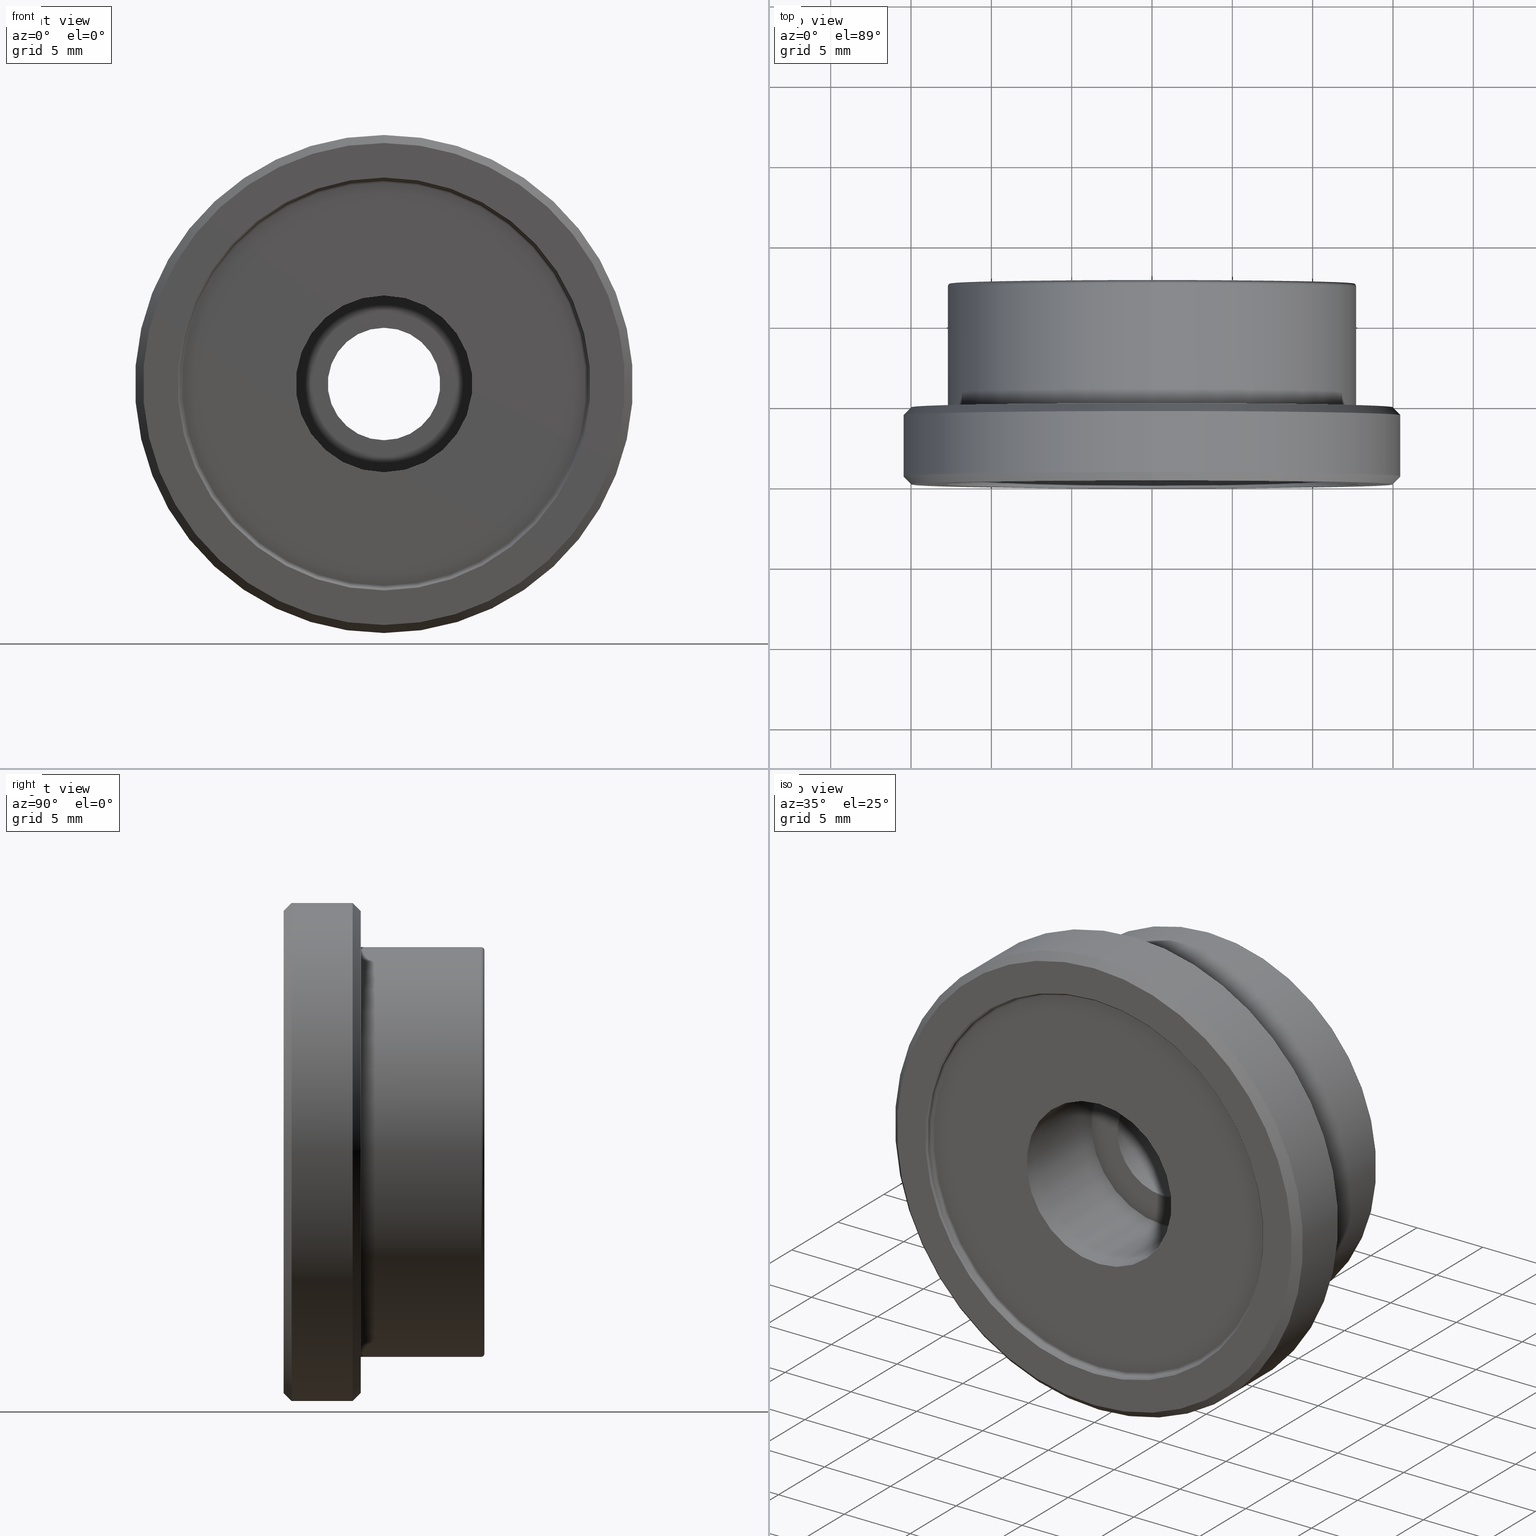
[diagram: canonical four-view strip — front | top / right | iso, engineering-drawing reading convention]
A machine part, canonical four-view strip (front | top / right | iso — engineering-drawing reading convention). The complete STEP part file that produces these views, byte-faithful:
ISO-10303-21;
HEADER;
FILE_DESCRIPTION (( 'STEP AP203' ),
    '1' );
FILE_NAME ('03HDR-1(M).STEP',
    '2016-02-22T05:43:37',
    ( '' ),
    ( '' ),
    'SwSTEP 2.0',
    'SolidWorks 2016',
    '' );
FILE_SCHEMA (( 'CONFIG_CONTROL_DESIGN' ));
ENDSEC;

DATA;
#1 = FACE_OUTER_BOUND ( 'NONE', #866, .T. ) ;
#2 = FACE_OUTER_BOUND ( 'NONE', #257, .T. ) ;
#3 = FACE_OUTER_BOUND ( 'NONE', #641, .T. ) ;
#4 = AXIS2_PLACEMENT_3D ( 'NONE', #432, #426, #761 ) ;
#5 = PERSON_AND_ORGANIZATION_ROLE ( 'creator' ) ;
#6 = CARTESIAN_POINT ( 'NONE',  ( 1.867586368699713800E-015, 4.799999999999999800, 15.00000000000000000 ) ) ;
#7 = DIRECTION ( 'NONE',  ( -0.0000000000000000000, 1.000000000000000000, -0.0000000000000000000 ) ) ;
#8 = ORIENTED_EDGE ( 'NONE', *, *, #772, .T. ) ;
#9 = DATE_TIME_ROLE ( 'classification_date' ) ;
#10 = CARTESIAN_POINT ( 'NONE',  ( 0.0000000000000000000, 0.2999999999999999300, 0.0000000000000000000 ) ) ;
#11 = AXIS2_PLACEMENT_3D ( 'NONE', #762, #16, #488 ) ;
#12 = EDGE_CURVE ( 'NONE', #358, #872, #362, .T. ) ;
#13 = ORIENTED_EDGE ( 'NONE', *, *, #334, .T. ) ;
#14 = CONICAL_SURFACE ( 'NONE', #327, 9.500000000000001800, 0.7853981633974482800 ) ;
#15 = FACE_OUTER_BOUND ( 'NONE', #246, .T. ) ;
#16 = DIRECTION ( 'NONE',  ( 0.0000000000000000000, -1.000000000000000000, 0.0000000000000000000 ) ) ;
#17 = CARTESIAN_POINT ( 'NONE',  ( 0.0000000000000000000, 7.500000000000000000, 0.0000000000000000000 ) ) ;
#18 = ORIENTED_EDGE ( 'NONE', *, *, #496, .T. ) ;
#19 = DIRECTION ( 'NONE',  ( 0.0000000000000000000, 0.0000000000000000000, 1.000000000000000000 ) ) ;
#20 = VERTEX_POINT ( 'NONE', #688 ) ;
#21 = DIRECTION ( 'NONE',  ( 0.0000000000000000000, -1.000000000000000000, 0.0000000000000000000 ) ) ;
#22 = LINE ( 'NONE', #312, #859 ) ;
#23 = VECTOR ( 'NONE', #554, 1000.000000000000000 ) ;
#24 = EDGE_CURVE ( 'NONE', #661, #548, #205, .T. ) ;
#25 = FACE_OUTER_BOUND ( 'NONE', #266, .T. ) ;
#26 = DIRECTION ( 'NONE',  ( -0.0000000000000000000, 1.000000000000000000, -0.0000000000000000000 ) ) ;
#27 = ADVANCED_FACE ( 'NONE', ( #832 ), #660, .F. ) ;
#28 = AXIS2_PLACEMENT_3D ( 'NONE', #254, #323, #796 ) ;
#29 = DIRECTION ( 'NONE',  ( -0.0000000000000000000, 1.000000000000000000, -0.0000000000000000000 ) ) ;
#30 = DIRECTION ( 'NONE',  ( -0.0000000000000000000, 1.000000000000000000, -0.0000000000000000000 ) ) ;
#31 = DIRECTION ( 'NONE',  ( 0.0000000000000000000, -1.000000000000000000, 0.0000000000000000000 ) ) ;
#32 = ORIENTED_EDGE ( 'NONE', *, *, #587, .T. ) ;
#33 = ORIENTED_EDGE ( 'NONE', *, *, #334, .F. ) ;
#34 = DATE_AND_TIME ( #867, #242 ) ;
#35 = DIRECTION ( 'NONE',  ( 0.0000000000000000000, 0.0000000000000000000, 1.000000000000000000 ) ) ;
#36 = DIRECTION ( 'NONE',  ( -0.0000000000000000000, 1.000000000000000000, -0.0000000000000000000 ) ) ;
#37 = APPROVAL ( #703, 'UNSPECIFIED' ) ;
#38 = EDGE_CURVE ( 'NONE', #382, #255, #109, .T. ) ;
#39 = ORIENTED_EDGE ( 'NONE', *, *, #557, .T. ) ;
#40 = ORIENTED_EDGE ( 'NONE', *, *, #589, .F. ) ;
#41 = CIRCLE ( 'NONE', #28, 12.75000000000000200 ) ;
#42 = DIRECTION ( 'NONE',  ( 1.000000000000000000, 0.0000000000000000000, 1.224646799147353200E-016 ) ) ;
#43 = CYLINDRICAL_SURFACE ( 'NONE', #774, 12.75000000000000200 ) ;
#44 = VECTOR ( 'NONE', #845, 1000.000000000000000 ) ;
#45 = AXIS2_PLACEMENT_3D ( 'NONE', #49, #328, #265 ) ;
#46 = FACE_OUTER_BOUND ( 'NONE', #755, .T. ) ;
#47 = DIRECTION ( 'NONE',  ( 1.224646799147353200E-016, 0.0000000000000000000, -1.000000000000000000 ) ) ;
#48 = AXIS2_PLACEMENT_3D ( 'NONE', #838, #21, #626 ) ;
#49 = CARTESIAN_POINT ( 'NONE',  ( 0.0000000000000000000, 12.50000000000000000, 0.0000000000000000000 ) ) ;
#50 = ADVANCED_FACE ( 'NONE', ( #2 ), #401, .F. ) ;
#51 = VERTEX_POINT ( 'NONE', #82 ) ;
#52 = CIRCLE ( 'NONE', #338, 9.600000000000012100 ) ;
#53 = ORIENTED_EDGE ( 'NONE', *, *, #803, .F. ) ;
#54 = FACE_OUTER_BOUND ( 'NONE', #144, .T. ) ;
#55 = ORIENTED_EDGE ( 'NONE', *, *, #466, .F. ) ;
#56 = CARTESIAN_POINT ( 'NONE',  ( 15.50000000000000400, 4.799999999999999800, 0.0000000000000000000 ) ) ;
#57 = CIRCLE ( 'NONE', #103, 12.54999999999999900 ) ;
#58 = CALENDAR_DATE ( 2016, 22, 2 ) ;
#59 = ADVANCED_FACE ( 'NONE', ( #479 ), #343, .T. ) ;
#60 = CIRCLE ( 'NONE', #48, 12.75000000000000200 ) ;
#61 = DIRECTION ( 'NONE',  ( 0.0000000000000000000, 1.000000000000000000, 0.0000000000000000000 ) ) ;
#62 = AXIS2_PLACEMENT_3D ( 'NONE', #420, #69, #483 ) ;
#63 = EDGE_CURVE ( 'NONE', #20, #294, #604, .T. ) ;
#64 = ORIENTED_EDGE ( 'NONE', *, *, #443, .T. ) ;
#65 = DIRECTION ( 'NONE',  ( 0.0000000000000000000, -1.000000000000000000, 0.0000000000000000000 ) ) ;
#66 = AXIS2_PLACEMENT_3D ( 'NONE', #453, #515, #523 ) ;
#67 = ORIENTED_EDGE ( 'NONE', *, *, #213, .T. ) ;
#68 = EDGE_CURVE ( 'NONE', #603, #255, #427, .T. ) ;
#69 = DIRECTION ( 'NONE',  ( -0.0000000000000000000, 1.000000000000000000, -0.0000000000000000000 ) ) ;
#70 = VERTEX_POINT ( 'NONE', #227 ) ;
#71 = CYLINDRICAL_SURFACE ( 'NONE', #563, 15.50000000000000400 ) ;
#72 = CARTESIAN_POINT ( 'NONE',  ( 0.0000000000000000000, 12.30000000000000100, 0.0000000000000000000 ) ) ;
#73 = EDGE_LOOP ( 'NONE', ( #124, #180, #397, #500 ) ) ;
#74 = APPROVAL_DATE_TIME ( #263, #495 ) ;
#75 = DIRECTION ( 'NONE',  ( 0.0000000000000000000, 0.0000000000000000000, 1.000000000000000000 ) ) ;
#76 = DIRECTION ( 'NONE',  ( 0.0000000000000000000, 0.0000000000000000000, 1.000000000000000000 ) ) ;
#77 = CARTESIAN_POINT ( 'NONE',  ( 0.0000000000000000000, 12.50000000000000000, 0.0000000000000000000 ) ) ;
#78 = PERSON_AND_ORGANIZATION_ROLE ( 'classification_officer' ) ;
#79 = CARTESIAN_POINT ( 'NONE',  ( 0.0000000000000000000, 12.30000000000000100, 12.75000000000000200 ) ) ;
#80 = CC_DESIGN_DATE_AND_TIME_ASSIGNMENT ( #186, #299, ( #677 ) ) ;
#81 = ORIENTED_EDGE ( 'NONE', *, *, #577, .T. ) ;
#82 = CARTESIAN_POINT ( 'NONE',  ( 1.867586368699714200E-015, 0.0000000000000000000, -15.00000000000000200 ) ) ;
#83 = FACE_OUTER_BOUND ( 'NONE', #467, .T. ) ;
#84 = EDGE_CURVE ( 'NONE', #540, #592, #710, .T. ) ;
#85 = ORIENTED_EDGE ( 'NONE', *, *, #804, .T. ) ;
#86 = LINE ( 'NONE', #783, #44 ) ;
#87 = FACE_BOUND ( 'NONE', #860, .T. ) ;
#88 = DIRECTION ( 'NONE',  ( 0.0000000000000000000, 0.0000000000000000000, 1.000000000000000000 ) ) ;
#89 = AXIS2_PLACEMENT_3D ( 'NONE', #676, #675, #121 ) ;
#90 = DIRECTION ( 'NONE',  ( -0.0000000000000000000, 1.000000000000000000, 0.0000000000000000000 ) ) ;
#91 = CARTESIAN_POINT ( 'NONE',  ( 1.163414459189985700E-015, 12.00000000000000000, -9.500000000000001800 ) ) ;
#92 = ORIENTED_EDGE ( 'NONE', *, *, #321, .T. ) ;
#93 = ADVANCED_BREP_SHAPE_REPRESENTATION ( '03HDR-1(M)', ( #485, #714 ), #831 ) ;
#94 = CARTESIAN_POINT ( 'NONE',  ( 0.0000000000000000000, 12.50000000000000000, 15.50000000000000400 ) ) ;
#95 = VERTEX_POINT ( 'NONE', #216 ) ;
#96 = DIRECTION ( 'NONE',  ( 0.0000000000000000000, 0.0000000000000000000, 1.000000000000000000 ) ) ;
#97 = AXIS2_PLACEMENT_3D ( 'NONE', #134, #824, #274 ) ;
#98 = ORIENTED_EDGE ( 'NONE', *, *, #528, .T. ) ;
#99 = CARTESIAN_POINT ( 'NONE',  ( 0.0000000000000000000, 0.5000000000000004400, 0.0000000000000000000 ) ) ;
#100 = VERTEX_POINT ( 'NONE', #415 ) ;
#101 = VECTOR ( 'NONE', #349, 1000.000000000000000 ) ;
#102 = DIRECTION ( 'NONE',  ( 0.0000000000000000000, 0.0000000000000000000, 1.000000000000000000 ) ) ;
#103 = AXIS2_PLACEMENT_3D ( 'NONE', #573, #243, #780 ) ;
#104 = CARTESIAN_POINT ( 'NONE',  ( 0.0000000000000000000, 12.50000000000000000, 9.500000000000001800 ) ) ;
#105 = DIRECTION ( 'NONE',  ( 0.0000000000000000000, 0.0000000000000000000, 1.000000000000000000 ) ) ;
#106 = ORIENTED_EDGE ( 'NONE', *, *, #378, .T. ) ;
#107 = DIRECTION ( 'NONE',  ( 0.0000000000000000000, 0.0000000000000000000, 1.000000000000000000 ) ) ;
#108 = ORIENTED_EDGE ( 'NONE', *, *, #617, .T. ) ;
#109 = CIRCLE ( 'NONE', #635, 0.2000000000000005100 ) ;
#110 = CONICAL_SURFACE ( 'NONE', #282, 15.00000000000000000, 0.7853981633974473900 ) ;
#111 = VECTOR ( 'NONE', #290, 1000.000000000000000 ) ;
#112 = CARTESIAN_POINT ( 'NONE',  ( 0.0000000000000000000, 4.299999999999994500, 15.50000000000000400 ) ) ;
#113 = AXIS2_PLACEMENT_3D ( 'NONE', #687, #273, #551 ) ;
#114 = CARTESIAN_POINT ( 'NONE',  ( 4.286263797015738600E-016, 7.500000000000000000, -3.500000000000002200 ) ) ;
#115 = ADVANCED_FACE ( 'NONE', ( #503 ), #43, .F. ) ;
#116 = ORIENTED_EDGE ( 'NONE', *, *, #466, .T. ) ;
#117 = DIRECTION ( 'NONE',  ( 8.659560562354926700E-017, -0.7071067811865482400, 0.7071067811865469100 ) ) ;
#118 = CYLINDRICAL_SURFACE ( 'NONE', #817, 12.75000000000000200 ) ;
#119 = ORIENTED_EDGE ( 'NONE', *, *, #719, .T. ) ;
#120 = FACE_OUTER_BOUND ( 'NONE', #126, .T. ) ;
#121 = DIRECTION ( 'NONE',  ( 0.0000000000000000000, 0.0000000000000000000, 1.000000000000000000 ) ) ;
#122 = DIRECTION ( 'NONE',  ( -0.0000000000000000000, 1.000000000000000000, -0.0000000000000000000 ) ) ;
#123 = ADVANCED_FACE ( 'NONE', ( #744 ), #324, .T. ) ;
#124 = ORIENTED_EDGE ( 'NONE', *, *, #160, .F. ) ;
#125 = CARTESIAN_POINT ( 'NONE',  ( 0.0000000000000000000, 12.50000000000000000, 12.75000000000000200 ) ) ;
#126 = EDGE_LOOP ( 'NONE', ( #350, #422 ) ) ;
#127 = CYLINDRICAL_SURFACE ( 'NONE', #793, 5.500000000000001800 ) ;
#128 = DIRECTION ( 'NONE',  ( 0.0000000000000000000, 0.0000000000000000000, 1.000000000000000000 ) ) ;
#129 = PRODUCT_DEFINITION_FORMATION_WITH_SPECIFIED_SOURCE ( 'ANY', '', #828, .NOT_KNOWN. ) ;
#130 = CIRCLE ( 'NONE', #377, 9.600000000000012100 ) ;
#131 = EDGE_CURVE ( 'NONE', #382, #138, #810, .T. ) ;
#132 = DIRECTION ( 'NONE',  ( 0.0000000000000000000, -1.000000000000000000, 0.0000000000000000000 ) ) ;
#133 = ADVANCED_FACE ( 'NONE', ( #249 ), #118, .T. ) ;
#134 = CARTESIAN_POINT ( 'NONE',  ( 12.75000000000000200, 12.50000000000000000, 0.0000000000000000000 ) ) ;
#135 = EDGE_CURVE ( 'NONE', #217, #583, #57, .T. ) ;
#136 = ORIENTED_EDGE ( 'NONE', *, *, #600, .F. ) ;
#137 = CARTESIAN_POINT ( 'NONE',  ( 6.735557395310444000E-016, 12.50000000000000000, -5.500000000000001800 ) ) ;
#138 = VERTEX_POINT ( 'NONE', #643 ) ;
#139 = LINE ( 'NONE', #753, #534 ) ;
#140 = AXIS2_PLACEMENT_3D ( 'NONE', #493, #631, #640 ) ;
#141 = PERSON_AND_ORGANIZATION_ROLE ( 'design_supplier' ) ;
#142 = CARTESIAN_POINT ( 'NONE',  ( 0.0000000000000000000, 12.30000000000000100, -12.55000000000000100 ) ) ;
#143 = DIRECTION ( 'NONE',  ( -0.0000000000000000000, 1.000000000000000000, -0.0000000000000000000 ) ) ;
#144 = EDGE_LOOP ( 'NONE', ( #85, #373 ) ) ;
#145 = AXIS2_PLACEMENT_3D ( 'NONE', #855, #181, #789 ) ;
#146 = APPROVAL_ROLE ( '' ) ;
#147 = ORIENTED_EDGE ( 'NONE', *, *, #288, .T. ) ;
#148 = CIRCLE ( 'NONE', #607, 0.2000000000000005100 ) ;
#149 = DIRECTION ( 'NONE',  ( 0.0000000000000000000, 0.0000000000000000000, 1.000000000000000000 ) ) ;
#150 = ORIENTED_EDGE ( 'NONE', *, *, #319, .T. ) ;
#151 = FACE_OUTER_BOUND ( 'NONE', #612, .T. ) ;
#152 = EDGE_CURVE ( 'NONE', #808, #725, #22, .T. ) ;
#153 = CARTESIAN_POINT ( 'NONE',  ( 0.0000000000000000000, 12.00000000000000000, 0.0000000000000000000 ) ) ;
#154 = CARTESIAN_POINT ( 'NONE',  ( 0.0000000000000000000, 12.39999999999999100, 0.0000000000000000000 ) ) ;
#155 = DIRECTION ( 'NONE',  ( -0.0000000000000000000, 1.000000000000000000, -0.0000000000000000000 ) ) ;
#156 = ORIENTED_EDGE ( 'NONE', *, *, #846, .F. ) ;
#157 = CARTESIAN_POINT ( 'NONE',  ( 0.0000000000000000000, 0.5000000000000004400, 0.0000000000000000000 ) ) ;
#158 = ORIENTED_EDGE ( 'NONE', *, *, #650, .F. ) ;
#159 = LINE ( 'NONE', #203, #594 ) ;
#160 = EDGE_CURVE ( 'NONE', #668, #707, #491, .T. ) ;
#161 = FACE_OUTER_BOUND ( 'NONE', #511, .T. ) ;
#162 = APPROVAL_DATE_TIME ( #524, #538 ) ;
#163 = DIRECTION ( 'NONE',  ( 0.0000000000000000000, 0.0000000000000000000, 1.000000000000000000 ) ) ;
#164 = ORIENTED_EDGE ( 'NONE', *, *, #131, .F. ) ;
#165 = DIRECTION ( 'NONE',  ( -0.0000000000000000000, 1.000000000000000000, -0.0000000000000000000 ) ) ;
#166 = AXIS2_PLACEMENT_3D ( 'NONE', #645, #30, #842 ) ;
#167 = CARTESIAN_POINT ( 'NONE',  ( 0.0000000000000000000, 12.50000000000000000, 9.600000000000012100 ) ) ;
#168 = DIRECTION ( 'NONE',  ( 0.0000000000000000000, 0.0000000000000000000, 1.000000000000000000 ) ) ;
#169 = DIRECTION ( 'NONE',  ( 0.0000000000000000000, 0.0000000000000000000, 1.000000000000000000 ) ) ;
#170 = ORIENTED_EDGE ( 'NONE', *, *, #84, .F. ) ;
#171 = ORIENTED_EDGE ( 'NONE', *, *, #288, .F. ) ;
#172 = CARTESIAN_POINT ( 'NONE',  ( 0.0000000000000000000, 0.5000000000000004400, 5.500000000000002700 ) ) ;
#173 = CIRCLE ( 'NONE', #183, 15.50000000000000400 ) ;
#174 = CARTESIAN_POINT ( 'NONE',  ( 1.549178200921401800E-015, 0.5000000000000004400, -12.54999999999999900 ) ) ;
#175 = VERTEX_POINT ( 'NONE', #237 ) ;
#176 = PERSON_AND_ORGANIZATION ( #221, #270 ) ;
#177 = FACE_BOUND ( 'NONE', #532, .T. ) ;
#178 = CARTESIAN_POINT ( 'NONE',  ( 0.0000000000000000000, 4.799999999999999800, 0.0000000000000000000 ) ) ;
#179 = CC_DESIGN_PERSON_AND_ORGANIZATION_ASSIGNMENT ( #756, #141, ( #129 ) ) ;
#180 = ORIENTED_EDGE ( 'NONE', *, *, #870, .F. ) ;
#181 = DIRECTION ( 'NONE',  ( -0.0000000000000000000, 1.000000000000000000, -0.0000000000000000000 ) ) ;
#182 = ORIENTED_EDGE ( 'NONE', *, *, #617, .F. ) ;
#183 = AXIS2_PLACEMENT_3D ( 'NONE', #775, #361, #189 ) ;
#184 = FACE_OUTER_BOUND ( 'NONE', #441, .T. ) ;
#185 = EDGE_LOOP ( 'NONE', ( #384, #202, #746, #13 ) ) ;
#186 = DATE_AND_TIME ( #383, #566 ) ;
#187 = ADVANCED_FACE ( 'NONE', ( #161 ), #71, .T. ) ;
#188 = ORIENTED_EDGE ( 'NONE', *, *, #228, .F. ) ;
#189 = DIRECTION ( 'NONE',  ( 0.0000000000000000000, 0.0000000000000000000, -1.000000000000000000 ) ) ;
#190 = FACE_OUTER_BOUND ( 'NONE', #435, .T. ) ;
#191 = CARTESIAN_POINT ( 'NONE',  ( 1.561424668912875500E-015, 12.50000000000000000, -12.75000000000000200 ) ) ;
#192 = AXIS2_PLACEMENT_3D ( 'NONE', #620, #365, #287 ) ;
#193 = ORIENTED_EDGE ( 'NONE', *, *, #311, .F. ) ;
#194 = DIRECTION ( 'NONE',  ( -0.0000000000000000000, 1.000000000000000000, -0.0000000000000000000 ) ) ;
#195 = CONICAL_SURFACE ( 'NONE', #66, 15.00000000000000000, 0.7853981633974473900 ) ;
#196 = AXIS2_PLACEMENT_3D ( 'NONE', #252, #385, #320 ) ;
#197 = ORIENTED_EDGE ( 'NONE', *, *, #24, .T. ) ;
#198 = APPROVAL_PERSON_ORGANIZATION ( #376, #538, #146 ) ;
#199 = EDGE_CURVE ( 'NONE', #668, #797, #819, .T. ) ;
#200 = DIRECTION ( 'NONE',  ( 0.0000000000000000000, 0.0000000000000000000, 1.000000000000000000 ) ) ;
#201 = ADVANCED_FACE ( 'NONE', ( #410, #779 ), #306, .F. ) ;
#202 = ORIENTED_EDGE ( 'NONE', *, *, #452, .F. ) ;
#203 = CARTESIAN_POINT ( 'NONE',  ( 0.0000000000000000000, 0.5000000000000004400, 15.50000000000000400 ) ) ;
#204 = ORIENTED_EDGE ( 'NONE', *, *, #131, .T. ) ;
#205 = CIRCLE ( 'NONE', #665, 12.85000000000000100 ) ;
#206 = PERSON_AND_ORGANIZATION ( #221, #270 ) ;
#207 = EDGE_LOOP ( 'NONE', ( #669, #613, #627, #136 ) ) ;
#208 = AXIS2_PLACEMENT_3D ( 'NONE', #77, #296, #244 ) ;
#209 = FACE_OUTER_BOUND ( 'NONE', #207, .T. ) ;
#210 = PLANE ( 'NONE',  #113 ) ;
#211 = DIRECTION ( 'NONE',  ( 0.0000000000000000000, 0.0000000000000000000, 1.000000000000000000 ) ) ;
#212 = EDGE_CURVE ( 'NONE', #727, #808, #639, .T. ) ;
#213 = EDGE_CURVE ( 'NONE', #818, #449, #52, .T. ) ;
#214 =( NAMED_UNIT ( * ) PLANE_ANGLE_UNIT ( ) SI_UNIT ( $, .RADIAN. ) );
#215 = CARTESIAN_POINT ( 'NONE',  ( 1.163414459189985700E-015, 12.39999999999999100, -9.500000000000001800 ) ) ;
#216 = CARTESIAN_POINT ( 'NONE',  ( 1.898202538678398000E-015, 0.5000000000000004400, -15.50000000000000400 ) ) ;
#217 = VERTEX_POINT ( 'NONE', #174 ) ;
#218 = CIRCLE ( 'NONE', #450, 0.2000000000000005100 ) ;
#219 = CARTESIAN_POINT ( 'NONE',  ( 0.0000000000000000000, 12.39999999999999100, 0.0000000000000000000 ) ) ;
#220 = CARTESIAN_POINT ( 'NONE',  ( 0.0000000000000000000, 12.50000000000000000, 3.500000000000001300 ) ) ;
#221 = PERSON ( 'UNSPECIFIED', 'UNSPECIFIED', 'UNSPECIFIED', ('UNSPECIFIED'), ('UNSPECIFIED'), ('UNSPECIFIED') ) ;
#222 = DIRECTION ( 'NONE',  ( -1.000000000000000000, -0.0000000000000000000, -0.0000000000000000000 ) ) ;
#223 = DIRECTION ( 'NONE',  ( 1.000000000000000000, 0.0000000000000000000, 0.0000000000000000000 ) ) ;
#224 = DIRECTION ( 'NONE',  ( 0.0000000000000000000, 0.0000000000000000000, -1.000000000000000000 ) ) ;
#225 = ORIENTED_EDGE ( 'NONE', *, *, #738, .T. ) ;
#226 = SECURITY_CLASSIFICATION ( '', '', #411 ) ;
#227 = CARTESIAN_POINT ( 'NONE',  ( 0.0000000000000000000, 12.39999999999999100, 9.500000000000001800 ) ) ;
#228 = EDGE_CURVE ( 'NONE', #313, #294, #649, .T. ) ;
#229 = PERSON_AND_ORGANIZATION_ROLE ( 'creator' ) ;
#230 = EDGE_LOOP ( 'NONE', ( #399, #848, #259, #437 ) ) ;
#231 = DIRECTION ( 'NONE',  ( -0.0000000000000000000, -1.000000000000000000, -0.0000000000000000000 ) ) ;
#232 = PERSON_AND_ORGANIZATION ( #221, #270 ) ;
#233 = DIRECTION ( 'NONE',  ( 0.0000000000000000000, 0.0000000000000000000, -1.000000000000000000 ) ) ;
#234 = EDGE_LOOP ( 'NONE', ( #579, #182, #827, #352 ) ) ;
#235 = CONICAL_SURFACE ( 'NONE', #238, 9.500000000000001800, 0.7853981633974482800 ) ;
#236 = AXIS2_PLACEMENT_3D ( 'NONE', #556, #622, #698 ) ;
#237 = CARTESIAN_POINT ( 'NONE',  ( 0.0000000000000000000, 7.500000000000000000, 3.500000000000001800 ) ) ;
#238 = AXIS2_PLACEMENT_3D ( 'NONE', #219, #61, #405 ) ;
#239 = ORIENTED_EDGE ( 'NONE', *, *, #666, .F. ) ;
#240 = CARTESIAN_POINT ( 'NONE',  ( 0.0000000000000000000, 7.500000000000000000, 0.0000000000000000000 ) ) ;
#241 = ORIENTED_EDGE ( 'NONE', *, *, #758, .T. ) ;
#242 = LOCAL_TIME ( 13, 43, 37.00000000000000000, #413 ) ;
#243 = DIRECTION ( 'NONE',  ( -0.0000000000000000000, 1.000000000000000000, -0.0000000000000000000 ) ) ;
#244 = DIRECTION ( 'NONE',  ( 0.0000000000000000000, 0.0000000000000000000, 1.000000000000000000 ) ) ;
#245 = EDGE_CURVE ( 'NONE', #294, #20, #173, .T. ) ;
#246 = EDGE_LOOP ( 'NONE', ( #322, #39, #552, #706 ) ) ;
#247 = AXIS2_PLACEMENT_3D ( 'NONE', #550, #560, #19 ) ;
#248 = ORIENTED_EDGE ( 'NONE', *, *, #258, .F. ) ;
#249 = FACE_OUTER_BOUND ( 'NONE', #498, .T. ) ;
#250 = APPROVAL_PERSON_ORGANIZATION ( #232, #37, #690 ) ;
#251 = CIRCLE ( 'NONE', #418, 5.500000000000001800 ) ;
#252 = CARTESIAN_POINT ( 'NONE',  ( 1.536931732929928400E-015, 12.30000000000000100, 12.55000000000000100 ) ) ;
#253 = ADVANCED_FACE ( 'NONE', ( #752 ), #625, .F. ) ;
#254 = CARTESIAN_POINT ( 'NONE',  ( 0.0000000000000000000, 4.799999999999999800, 0.0000000000000000000 ) ) ;
#255 = VERTEX_POINT ( 'NONE', #791 ) ;
#256 = ADVANCED_FACE ( 'NONE', ( #501 ), #692, .T. ) ;
#257 = EDGE_LOOP ( 'NONE', ( #380, #509, #329, #158 ) ) ;
#258 = EDGE_CURVE ( 'NONE', #281, #175, #708, .T. ) ;
#259 = ORIENTED_EDGE ( 'NONE', *, *, #788, .F. ) ;
#260 = EDGE_CURVE ( 'NONE', #592, #540, #584, .T. ) ;
#261 = ORIENTED_EDGE ( 'NONE', *, *, #528, .F. ) ;
#262 = PLANE ( 'NONE',  #836 ) ;
#263 = DATE_AND_TIME ( #543, #695 ) ;
#264 = ADVANCED_FACE ( 'NONE', ( #1 ), #195, .T. ) ;
#265 = DIRECTION ( 'NONE',  ( 0.0000000000000000000, 0.0000000000000000000, 1.000000000000000000 ) ) ;
#266 = EDGE_LOOP ( 'NONE', ( #193, #164, #786, #839 ) ) ;
#267 = DIRECTION ( 'NONE',  ( 0.0000000000000000000, 0.0000000000000000000, 1.000000000000000000 ) ) ;
#268 = ADVANCED_FACE ( 'NONE', ( #184 ), #576, .F. ) ;
#269 = CC_DESIGN_DATE_AND_TIME_ASSIGNMENT ( #34, #9, ( #226 ) ) ;
#270 = ORGANIZATION ( 'UNSPECIFIED', 'UNSPECIFIED', '' ) ;
#271 = EDGE_CURVE ( 'NONE', #279, #217, #148, .T. ) ;
#272 = VECTOR ( 'NONE', #402, 1000.000000000000100 ) ;
#273 = DIRECTION ( 'NONE',  ( -0.0000000000000000000, 1.000000000000000000, 0.0000000000000000000 ) ) ;
#274 = DIRECTION ( 'NONE',  ( 0.0000000000000000000, -0.0000000000000000000, -1.000000000000000000 ) ) ;
#275 = AXIS2_PLACEMENT_3D ( 'NONE', #771, #165, #169 ) ;
#276 = ORIENTED_EDGE ( 'NONE', *, *, #63, .F. ) ;
#277 = DIRECTION ( 'NONE',  ( 0.0000000000000000000, 1.000000000000000000, 0.0000000000000000000 ) ) ;
#278 = ORIENTED_EDGE ( 'NONE', *, *, #38, .F. ) ;
#279 = VERTEX_POINT ( 'NONE', #794 ) ;
#280 = DIRECTION ( 'NONE',  ( 0.0000000000000000000, 0.0000000000000000000, -1.000000000000000000 ) ) ;
#281 = VERTEX_POINT ( 'NONE', #114 ) ;
#282 = AXIS2_PLACEMENT_3D ( 'NONE', #632, #417, #224 ) ;
#283 = VECTOR ( 'NONE', #341, 1000.000000000000000 ) ;
#284 =( NAMED_UNIT ( * ) SI_UNIT ( $, .STERADIAN. ) SOLID_ANGLE_UNIT ( ) );
#285 = CARTESIAN_POINT ( 'NONE',  ( 0.0000000000000000000, 0.5000000000000004400, 12.54999999999999900 ) ) ;
#286 = DIRECTION ( 'NONE',  ( -0.0000000000000000000, 1.000000000000000000, 0.0000000000000000000 ) ) ;
#287 = DIRECTION ( 'NONE',  ( 0.0000000000000000000, 0.0000000000000000000, 1.000000000000000000 ) ) ;
#288 = EDGE_CURVE ( 'NONE', #872, #279, #392, .T. ) ;
#289 = APPLICATION_PROTOCOL_DEFINITION ( 'international standard', 'config_control_design', 1994, #693 ) ;
#290 = DIRECTION ( 'NONE',  ( -0.0000000000000000000, 1.000000000000000000, -0.0000000000000000000 ) ) ;
#291 = ORIENTED_EDGE ( 'NONE', *, *, #557, .F. ) ;
#292 = DIRECTION ( 'NONE',  ( 0.0000000000000000000, -1.000000000000000000, 0.0000000000000000000 ) ) ;
#293 = DIRECTION ( 'NONE',  ( 0.0000000000000000000, 0.0000000000000000000, 1.000000000000000000 ) ) ;
#294 = VERTEX_POINT ( 'NONE', #112 ) ;
#295 = AXIS2_PLACEMENT_3D ( 'NONE', #99, #436, #168 ) ;
#296 = DIRECTION ( 'NONE',  ( -0.0000000000000000000, 1.000000000000000000, -0.0000000000000000000 ) ) ;
#297 = FACE_BOUND ( 'NONE', #646, .T. ) ;
#298 = CARTESIAN_POINT ( 'NONE',  ( 0.0000000000000000000, 4.299999999999994500, 0.0000000000000000000 ) ) ;
#299 = DATE_TIME_ROLE ( 'creation_date' ) ;
#300 = DIRECTION ( 'NONE',  ( 0.0000000000000000000, 0.0000000000000000000, 1.000000000000000000 ) ) ;
#301 = CARTESIAN_POINT ( 'NONE',  ( 0.0000000000000000000, 12.30000000000000100, 0.0000000000000000000 ) ) ;
#302 = CC_DESIGN_PERSON_AND_ORGANIZATION_ASSIGNMENT ( #394, #229, ( #677 ) ) ;
#303 = DIRECTION ( 'NONE',  ( -0.0000000000000000000, 1.000000000000000000, -0.0000000000000000000 ) ) ;
#304 = EDGE_LOOP ( 'NONE', ( #544, #799, #567, #458 ) ) ;
#305 = ADVANCED_FACE ( 'NONE', ( #850 ), #333, .F. ) ;
#306 = PLANE ( 'NONE',  #389 ) ;
#307 = ORIENTED_EDGE ( 'NONE', *, *, #63, .T. ) ;
#308 = VECTOR ( 'NONE', #474, 1000.000000000000100 ) ;
#309 = EDGE_CURVE ( 'NONE', #592, #294, #522, .T. ) ;
#310 = DIRECTION ( 'NONE',  ( 0.0000000000000000000, 0.0000000000000000000, 1.000000000000000000 ) ) ;
#311 = EDGE_CURVE ( 'NONE', #138, #603, #671, .T. ) ;
#312 = CARTESIAN_POINT ( 'NONE',  ( 0.0000000000000000000, 12.50000000000000000, 5.500000000000001800 ) ) ;
#313 = VERTEX_POINT ( 'NONE', #517 ) ;
#314 = DIRECTION ( 'NONE',  ( -0.0000000000000000000, 1.000000000000000000, -0.0000000000000000000 ) ) ;
#315 = VECTOR ( 'NONE', #454, 1000.000000000000000 ) ;
#316 = DIRECTION ( 'NONE',  ( 0.0000000000000000000, 0.0000000000000000000, -1.000000000000000000 ) ) ;
#317 = FACE_OUTER_BOUND ( 'NONE', #332, .T. ) ;
#318 = CC_DESIGN_SECURITY_CLASSIFICATION ( #226, ( #129 ) ) ;
#319 = EDGE_CURVE ( 'NONE', #548, #661, #809, .T. ) ;
#320 = DIRECTION ( 'NONE',  ( -1.224646799147353200E-016, 0.0000000000000000000, -1.000000000000000000 ) ) ;
#321 = EDGE_CURVE ( 'NONE', #542, #561, #41, .T. ) ;
#322 = ORIENTED_EDGE ( 'NONE', *, *, #212, .F. ) ;
#323 = DIRECTION ( 'NONE',  ( -0.0000000000000000000, 1.000000000000000000, -0.0000000000000000000 ) ) ;
#324 = CONICAL_SURFACE ( 'NONE', #166, 15.50000000000000400, 0.7853981633974500600 ) ;
#325 = CIRCLE ( 'NONE', #409, 9.500000000000001800 ) ;
#326 = DIRECTION ( 'NONE',  ( -0.0000000000000000000, 1.000000000000000000, -0.0000000000000000000 ) ) ;
#327 = AXIS2_PLACEMENT_3D ( 'NONE', #154, #368, #96 ) ;
#328 = DIRECTION ( 'NONE',  ( -0.0000000000000000000, 1.000000000000000000, -0.0000000000000000000 ) ) ;
#329 = ORIENTED_EDGE ( 'NONE', *, *, #24, .F. ) ;
#330 = CARTESIAN_POINT ( 'NONE',  ( 0.0000000000000000000, 12.39999999999999100, 0.0000000000000000000 ) ) ;
#331 = AXIS2_PLACEMENT_3D ( 'NONE', #667, #326, #267 ) ;
#332 = EDGE_LOOP ( 'NONE', ( #33, #586 ) ) ;
#333 = TOROIDAL_SURFACE ( 'NONE', #145, 12.54999999999999900, 0.2000000000000011200 ) ;
#334 = EDGE_CURVE ( 'NONE', #583, #217, #468, .T. ) ;
#335 = COORDINATED_UNIVERSAL_TIME_OFFSET ( 8, 0, .AHEAD. ) ;
#336 = FACE_OUTER_BOUND ( 'NONE', #683, .T. ) ;
#337 = DIRECTION ( 'NONE',  ( 0.0000000000000000000, 0.0000000000000000000, 1.000000000000000000 ) ) ;
#338 = AXIS2_PLACEMENT_3D ( 'NONE', #508, #369, #578 ) ;
#339 = CARTESIAN_POINT ( 'NONE',  ( 1.561424668912875500E-015, 4.799999999999999800, -12.75000000000000200 ) ) ;
#340 = ORIENTED_EDGE ( 'NONE', *, *, #834, .T. ) ;
#341 = DIRECTION ( 'NONE',  ( -0.0000000000000000000, 1.000000000000000000, -0.0000000000000000000 ) ) ;
#342 = CC_DESIGN_PERSON_AND_ORGANIZATION_ASSIGNMENT ( #176, #78, ( #226 ) ) ;
#343 = TOROIDAL_SURFACE ( 'NONE', #682, 12.55000000000000100, 0.2000000000000000100 ) ;
#344 = EDGE_LOOP ( 'NONE', ( #393, #865, #806, #278 ) ) ;
#345 = CONICAL_SURFACE ( 'NONE', #4, 12.85000000000000100, 0.7853981633974657100 ) ;
#346 = AXIS2_PLACEMENT_3D ( 'NONE', #662, #314, #107 ) ;
#347 = EDGE_CURVE ( 'NONE', #358, #548, #564, .T. ) ;
#348 = MECHANICAL_CONTEXT ( 'NONE', #686, 'mechanical' ) ;
#349 = DIRECTION ( 'NONE',  ( 8.659560562354948900E-017, 0.7071067811865463500, -0.7071067811865487900 ) ) ;
#350 = ORIENTED_EDGE ( 'NONE', *, *, #84, .T. ) ;
#351 = DIRECTION ( 'NONE',  ( -0.0000000000000000000, -1.000000000000000000, -0.0000000000000000000 ) ) ;
#352 = ORIENTED_EDGE ( 'NONE', *, *, #319, .F. ) ;
#353 = CARTESIAN_POINT ( 'NONE',  ( 5.500000000000002700, 0.5000000000000000000, 0.0000000000000000000 ) ) ;
#354 = APPROVAL_PERSON_ORGANIZATION ( #206, #495, #823 ) ;
#355 = CARTESIAN_POINT ( 'NONE',  ( 0.0000000000000000000, 12.50000000000000000, 0.0000000000000000000 ) ) ;
#356 = LINE ( 'NONE', #701, #366 ) ;
#357 = EDGE_CURVE ( 'NONE', #175, #281, #728, .T. ) ;
#358 = VERTEX_POINT ( 'NONE', #657 ) ;
#359 = DIRECTION ( 'NONE',  ( -0.0000000000000000000, 1.000000000000000000, -0.0000000000000000000 ) ) ;
#360 = ORIENTED_EDGE ( 'NONE', *, *, #587, .F. ) ;
#361 = DIRECTION ( 'NONE',  ( 0.0000000000000000000, -1.000000000000000000, 0.0000000000000000000 ) ) ;
#362 = CIRCLE ( 'NONE', #247, 12.75000000000000200 ) ;
#363 = CYLINDRICAL_SURFACE ( 'NONE', #208, 12.75000000000000200 ) ;
#364 = AXIS2_PLACEMENT_3D ( 'NONE', #580, #654, #656 ) ;
#365 = DIRECTION ( 'NONE',  ( -0.0000000000000000000, 1.000000000000000000, -0.0000000000000000000 ) ) ;
#366 = VECTOR ( 'NONE', #570, 1000.000000000000000 ) ;
#367 = DIRECTION ( 'NONE',  ( 0.0000000000000000000, -1.000000000000000000, 0.0000000000000000000 ) ) ;
#368 = DIRECTION ( 'NONE',  ( 0.0000000000000000000, 1.000000000000000000, 0.0000000000000000000 ) ) ;
#369 = DIRECTION ( 'NONE',  ( 0.0000000000000000000, -1.000000000000000000, 0.0000000000000000000 ) ) ;
#370 = CARTESIAN_POINT ( 'NONE',  ( 0.0000000000000000000, 12.50000000000000000, 0.0000000000000000000 ) ) ;
#371 = ADVANCED_FACE ( 'NONE', ( #83 ), #127, .F. ) ;
#372 = CARTESIAN_POINT ( 'NONE',  ( 0.0000000000000000000, 12.50000000000000000, 0.0000000000000000000 ) ) ;
#373 = ORIENTED_EDGE ( 'NONE', *, *, #472, .T. ) ;
#374 = CARTESIAN_POINT ( 'NONE',  ( 0.0000000000000000000, 12.00000000000000000, 9.500000000000001800 ) ) ;
#375 = DIRECTION ( 'NONE',  ( 0.0000000000000000000, 0.0000000000000000000, 1.000000000000000000 ) ) ;
#376 = PERSON_AND_ORGANIZATION ( #221, #270 ) ;
#377 = AXIS2_PLACEMENT_3D ( 'NONE', #685, #619, #431 ) ;
#378 = EDGE_CURVE ( 'NONE', #390, #313, #159, .T. ) ;
#379 = AXIS2_PLACEMENT_3D ( 'NONE', #396, #398, #337 ) ;
#380 = ORIENTED_EDGE ( 'NONE', *, *, #12, .F. ) ;
#381 = ORIENTED_EDGE ( 'NONE', *, *, #68, .T. ) ;
#382 = VERTEX_POINT ( 'NONE', #533 ) ;
#383 = CALENDAR_DATE ( 2016, 22, 2 ) ;
#384 = ORIENTED_EDGE ( 'NONE', *, *, #271, .F. ) ;
#385 = DIRECTION ( 'NONE',  ( 1.000000000000000000, 0.0000000000000000000, -1.224646799147353200E-016 ) ) ;
#386 = LINE ( 'NONE', #125, #663 ) ;
#387 = AXIS2_PLACEMENT_3D ( 'NONE', #572, #31, #102 ) ;
#388 = CARTESIAN_POINT ( 'NONE',  ( 1.175660927181460400E-015, 12.50000000000000000, -9.600000000000012100 ) ) ;
#389 = AXIS2_PLACEMENT_3D ( 'NONE', #633, #367, #444 ) ;
#390 = VERTEX_POINT ( 'NONE', #670 ) ;
#391 = DIRECTION ( 'NONE',  ( -0.0000000000000000000, 1.000000000000000000, -0.0000000000000000000 ) ) ;
#392 = LINE ( 'NONE', #191, #315 ) ;
#393 = ORIENTED_EDGE ( 'NONE', *, *, #772, .F. ) ;
#394 = PERSON_AND_ORGANIZATION ( #221, #270 ) ;
#395 = ADVANCED_FACE ( 'NONE', ( #120, #177 ), #262, .F. ) ;
#396 = CARTESIAN_POINT ( 'NONE',  ( 0.0000000000000000000, 7.500000000000000000, 0.0000000000000000000 ) ) ;
#397 = ORIENTED_EDGE ( 'NONE', *, *, #846, .T. ) ;
#398 = DIRECTION ( 'NONE',  ( -0.0000000000000000000, 1.000000000000000000, -0.0000000000000000000 ) ) ;
#399 = ORIENTED_EDGE ( 'NONE', *, *, #472, .F. ) ;
#400 = EDGE_CURVE ( 'NONE', #281, #100, #630, .T. ) ;
#401 = CONICAL_SURFACE ( 'NONE', #734, 12.85000000000000100, 0.7853981633974657100 ) ;
#402 = DIRECTION ( 'NONE',  ( 8.659560562354932900E-017, 0.7071067811865474600, -0.7071067811865474600 ) ) ;
#403 = COORDINATED_UNIVERSAL_TIME_OFFSET ( 8, 0, .AHEAD. ) ;
#404 = FACE_OUTER_BOUND ( 'NONE', #659, .T. ) ;
#405 = DIRECTION ( 'NONE',  ( 0.0000000000000000000, 0.0000000000000000000, 1.000000000000000000 ) ) ;
#406 = AXIS2_PLACEMENT_3D ( 'NONE', #869, #194, #200 ) ;
#407 = DIRECTION ( 'NONE',  ( 0.0000000000000000000, 0.0000000000000000000, 1.000000000000000000 ) ) ;
#408 = DIRECTION ( 'NONE',  ( -0.0000000000000000000, 1.000000000000000000, -0.0000000000000000000 ) ) ;
#409 = AXIS2_PLACEMENT_3D ( 'NONE', #813, #547, #750 ) ;
#410 = FACE_BOUND ( 'NONE', #464, .T. ) ;
#411 = SECURITY_CLASSIFICATION_LEVEL ( 'unclassified' ) ;
#412 = ORIENTED_EDGE ( 'NONE', *, *, #719, .F. ) ;
#413 = COORDINATED_UNIVERSAL_TIME_OFFSET ( 8, 0, .AHEAD. ) ;
#414 = CARTESIAN_POINT ( 'NONE',  ( 0.0000000000000000000, 4.799999999999999800, -15.00000000000000000 ) ) ;
#415 = CARTESIAN_POINT ( 'NONE',  ( 4.286263797015737600E-016, 12.00000000000000000, -3.500000000000001300 ) ) ;
#416 = APPROVAL_STATUS ( 'not_yet_approved' ) ;
#417 = DIRECTION ( 'NONE',  ( 0.0000000000000000000, -1.000000000000000000, 0.0000000000000000000 ) ) ;
#418 = AXIS2_PLACEMENT_3D ( 'NONE', #17, #502, #163 ) ;
#419 = DIRECTION ( 'NONE',  ( -0.0000000000000000000, 1.000000000000000000, -0.0000000000000000000 ) ) ;
#420 = CARTESIAN_POINT ( 'NONE',  ( 0.0000000000000000000, 12.00000000000000000, 0.0000000000000000000 ) ) ;
#421 = DIRECTION ( 'NONE',  ( 0.0000000000000000000, 0.0000000000000000000, 1.000000000000000000 ) ) ;
#422 = ORIENTED_EDGE ( 'NONE', *, *, #260, .T. ) ;
#423 = DIRECTION ( 'NONE',  ( -0.0000000000000000000, 1.000000000000000000, -0.0000000000000000000 ) ) ;
#424 = ORIENTED_EDGE ( 'NONE', *, *, #574, .T. ) ;
#425 = AXIS2_PLACEMENT_3D ( 'NONE', #757, #155, #88 ) ;
#426 = DIRECTION ( 'NONE',  ( -0.0000000000000000000, -1.000000000000000000, -0.0000000000000000000 ) ) ;
#427 = CIRCLE ( 'NONE', #11, 12.75000000000000200 ) ;
#428 = LOCAL_TIME ( 13, 43, 37.00000000000000000, #606 ) ;
#429 = DIRECTION ( 'NONE',  ( 0.0000000000000000000, 0.0000000000000000000, 1.000000000000000000 ) ) ;
#430 = CIRCLE ( 'NONE', #737, 12.75000000000000200 ) ;
#431 = DIRECTION ( 'NONE',  ( 0.0000000000000000000, 0.0000000000000000000, -1.000000000000000000 ) ) ;
#432 = CARTESIAN_POINT ( 'NONE',  ( 0.0000000000000000000, 0.0000000000000000000, 0.0000000000000000000 ) ) ;
#433 = ORIENTED_EDGE ( 'NONE', *, *, #863, .F. ) ;
#434 = DIRECTION ( 'NONE',  ( 0.0000000000000000000, 0.0000000000000000000, -1.000000000000000000 ) ) ;
#435 = EDGE_LOOP ( 'NONE', ( #204, #8 ) ) ;
#436 = DIRECTION ( 'NONE',  ( -0.0000000000000000000, 1.000000000000000000, -0.0000000000000000000 ) ) ;
#437 = ORIENTED_EDGE ( 'NONE', *, *, #378, .F. ) ;
#438 = ADVANCED_FACE ( 'NONE', ( #15 ), #853, .F. ) ;
#439 = ORIENTED_EDGE ( 'NONE', *, *, #834, .F. ) ;
#440 = DIRECTION ( 'NONE',  ( -0.0000000000000000000, 1.000000000000000000, -0.0000000000000000000 ) ) ;
#441 = EDGE_LOOP ( 'NONE', ( #520, #459, #98, #156 ) ) ;
#442 = SHAPE_DEFINITION_REPRESENTATION ( #565, #93 ) ;
#443 = EDGE_CURVE ( 'NONE', #540, #20, #451, .T. ) ;
#444 = DIRECTION ( 'NONE',  ( 0.0000000000000000000, -0.0000000000000000000, -1.000000000000000000 ) ) ;
#445 = DIRECTION ( 'NONE',  ( -0.0000000000000000000, 1.000000000000000000, -0.0000000000000000000 ) ) ;
#446 = ORIENTED_EDGE ( 'NONE', *, *, #788, .T. ) ;
#447 = ORIENTED_EDGE ( 'NONE', *, *, #321, .F. ) ;
#448 = DIRECTION ( 'NONE',  ( -0.0000000000000000000, 1.000000000000000000, -0.0000000000000000000 ) ) ;
#449 = VERTEX_POINT ( 'NONE', #388 ) ;
#450 = AXIS2_PLACEMENT_3D ( 'NONE', #558, #759, #760 ) ;
#451 = LINE ( 'NONE', #736, #588 ) ;
#452 = EDGE_CURVE ( 'NONE', #531, #279, #684, .T. ) ;
#453 = CARTESIAN_POINT ( 'NONE',  ( 0.0000000000000000000, 4.799999999999999800, 0.0000000000000000000 ) ) ;
#454 = DIRECTION ( 'NONE',  ( -0.0000000000000000000, 1.000000000000000000, -0.0000000000000000000 ) ) ;
#455 = AXIS2_PLACEMENT_3D ( 'NONE', #847, #303, #773 ) ;
#456 = ORIENTED_EDGE ( 'NONE', *, *, #496, .F. ) ;
#457 = CARTESIAN_POINT ( 'NONE',  ( 1.536931732929928000E-015, 0.3000000000000000400, -12.54999999999999900 ) ) ;
#458 = ORIENTED_EDGE ( 'NONE', *, *, #844, .T. ) ;
#459 = ORIENTED_EDGE ( 'NONE', *, *, #160, .T. ) ;
#460 = CARTESIAN_POINT ( 'NONE',  ( 4.286263797015737600E-016, 12.50000000000000000, -3.500000000000001300 ) ) ;
#461 = LINE ( 'NONE', #815, #101 ) ;
#462 = AXIS2_PLACEMENT_3D ( 'NONE', #611, #143, #211 ) ;
#463 = DIRECTION ( 'NONE',  ( 8.659560562355082000E-017, -0.7071067811865352500, 0.7071067811865597900 ) ) ;
#464 = EDGE_LOOP ( 'NONE', ( #638, #481 ) ) ;
#465 = AXIS2_PLACEMENT_3D ( 'NONE', #562, #286, #293 ) ;
#466 = EDGE_CURVE ( 'NONE', #358, #531, #386, .T. ) ;
#467 = EDGE_LOOP ( 'NONE', ( #291, #778, #525, #119 ) ) ;
#468 = CIRCLE ( 'NONE', #406, 12.54999999999999900 ) ;
#469 = CIRCLE ( 'NONE', #787, 5.500000000000001800 ) ;
#470 = LINE ( 'NONE', #220, #111 ) ;
#471 = DIRECTION ( 'NONE',  ( 0.0000000000000000000, 0.7071067811865463500, 0.7071067811865487900 ) ) ;
#472 = EDGE_CURVE ( 'NONE', #51, #390, #822, .T. ) ;
#473 = ADVANCED_FACE ( 'NONE', ( #868 ), #516, .F. ) ;
#474 = DIRECTION ( 'NONE',  ( 0.0000000000000000000, 0.7071067811865474600, 0.7071067811865474600 ) ) ;
#475 = CARTESIAN_POINT ( 'NONE',  ( 0.0000000000000000000, 0.2999999999999999300, 12.75000000000000200 ) ) ;
#476 = PRODUCT_RELATED_PRODUCT_CATEGORY ( 'detail', '', ( #828 ) ) ;
#477 = ORIENTED_EDGE ( 'NONE', *, *, #260, .F. ) ;
#478 = DESIGN_CONTEXT ( 'detailed design', #693, 'design' ) ;
#479 = FACE_OUTER_BOUND ( 'NONE', #344, .T. ) ;
#480 = PLANE ( 'NONE',  #97 ) ;
#481 = ORIENTED_EDGE ( 'NONE', *, *, #758, .F. ) ;
#482 = CIRCLE ( 'NONE', #89, 15.50000000000000400 ) ;
#483 = DIRECTION ( 'NONE',  ( 0.0000000000000000000, 0.0000000000000000000, 1.000000000000000000 ) ) ;
#484 = AXIS2_PLACEMENT_3D ( 'NONE', #536, #132, #605 ) ;
#485 = MANIFOLD_SOLID_BREP ( '�ꨤ1', #851 ) ;
#486 = ORIENTED_EDGE ( 'NONE', *, *, #228, .T. ) ;
#487 = EDGE_LOOP ( 'NONE', ( #537, #609 ) ) ;
#488 = DIRECTION ( 'NONE',  ( 0.0000000000000000000, 0.0000000000000000000, -1.000000000000000000 ) ) ;
#489 = VECTOR ( 'NONE', #117, 999.9999999999998900 ) ;
#490 = PLANE ( 'NONE',  #465 ) ;
#491 = LINE ( 'NONE', #569, #767 ) ;
#492 = CIRCLE ( 'NONE', #387, 15.00000000000000200 ) ;
#493 = CARTESIAN_POINT ( 'NONE',  ( 0.0000000000000000000, 12.00000000000000000, 0.0000000000000000000 ) ) ;
#494 = TOROIDAL_SURFACE ( 'NONE', #726, 12.55000000000000100, 0.2000000000000000100 ) ;
#495 = APPROVAL ( #700, 'UNSPECIFIED' ) ;
#496 = EDGE_CURVE ( 'NONE', #95, #313, #482, .T. ) ;
#497 = CARTESIAN_POINT ( 'NONE',  ( 1.163414459189985700E-015, 12.39999999999999100, -9.500000000000001800 ) ) ;
#498 = EDGE_LOOP ( 'NONE', ( #519, #735, #32, #381 ) ) ;
#499 = DIRECTION ( 'NONE',  ( -0.0000000000000000000, 1.000000000000000000, -0.0000000000000000000 ) ) ;
#500 = ORIENTED_EDGE ( 'NONE', *, *, #514, .T. ) ;
#501 = FACE_OUTER_BOUND ( 'NONE', #790, .T. ) ;
#502 = DIRECTION ( 'NONE',  ( -0.0000000000000000000, 1.000000000000000000, -0.0000000000000000000 ) ) ;
#503 = FACE_OUTER_BOUND ( 'NONE', #798, .T. ) ;
#504 = LINE ( 'NONE', #137, #283 ) ;
#505 = DIRECTION ( 'NONE',  ( -0.0000000000000000000, 1.000000000000000000, -0.0000000000000000000 ) ) ;
#506 = DIRECTION ( 'NONE',  ( -0.0000000000000000000, 1.000000000000000000, -0.0000000000000000000 ) ) ;
#507 = AXIS2_PLACEMENT_3D ( 'NONE', #353, #90, #300 ) ;
#508 = CARTESIAN_POINT ( 'NONE',  ( 0.0000000000000000000, 12.50000000000000000, 0.0000000000000000000 ) ) ;
#509 = ORIENTED_EDGE ( 'NONE', *, *, #347, .T. ) ;
#510 = DIRECTION ( 'NONE',  ( -0.0000000000000000000, 1.000000000000000000, -0.0000000000000000000 ) ) ;
#511 = EDGE_LOOP ( 'NONE', ( #446, #340, #307, #188 ) ) ;
#512 = CC_DESIGN_PERSON_AND_ORGANIZATION_ASSIGNMENT ( #723, #629, ( #828 ) ) ;
#513 = CIRCLE ( 'NONE', #62, 3.500000000000001300 ) ;
#514 = EDGE_CURVE ( 'NONE', #70, #707, #835, .T. ) ;
#515 = DIRECTION ( 'NONE',  ( 0.0000000000000000000, -1.000000000000000000, 0.0000000000000000000 ) ) ;
#516 = TOROIDAL_SURFACE ( 'NONE', #873, 12.54999999999999900, 0.2000000000000011200 ) ;
#517 = CARTESIAN_POINT ( 'NONE',  ( 0.0000000000000000000, 0.5000000000000004400, 15.50000000000000400 ) ) ;
#518 = AXIS2_PLACEMENT_3D ( 'NONE', #298, #702, #829 ) ;
#519 = ORIENTED_EDGE ( 'NONE', *, *, #857, .F. ) ;
#520 = ORIENTED_EDGE ( 'NONE', *, *, #199, .F. ) ;
#521 = ADVANCED_FACE ( 'NONE', ( #336 ), #674, .F. ) ;
#522 = LINE ( 'NONE', #854, #489 ) ;
#523 = DIRECTION ( 'NONE',  ( 0.0000000000000000000, 0.0000000000000000000, -1.000000000000000000 ) ) ;
#524 = DATE_AND_TIME ( #820, #852 ) ;
#525 = ORIENTED_EDGE ( 'NONE', *, *, #152, .T. ) ;
#526 = CIRCLE ( 'NONE', #814, 15.50000000000000400 ) ;
#527 = AXIS2_PLACEMENT_3D ( 'NONE', #330, #277, #280 ) ;
#528 = EDGE_CURVE ( 'NONE', #707, #70, #325, .T. ) ;
#529 = ADVANCED_FACE ( 'NONE', ( #190, #297 ), #480, .F. ) ;
#530 = DIRECTION ( 'NONE',  ( -0.0000000000000000000, 1.000000000000000000, -0.0000000000000000000 ) ) ;
#531 = VERTEX_POINT ( 'NONE', #475 ) ;
#532 = EDGE_LOOP ( 'NONE', ( #447, #239 ) ) ;
#533 = CARTESIAN_POINT ( 'NONE',  ( 0.0000000000000000000, 12.50000000000000000, -12.55000000000000100 ) ) ;
#534 = VECTOR ( 'NONE', #408, 1000.000000000000000 ) ;
#535 = DIRECTION ( 'NONE',  ( 0.0000000000000000000, -0.7071067811865482400, -0.7071067811865469100 ) ) ;
#536 = CARTESIAN_POINT ( 'NONE',  ( 0.0000000000000000000, 0.0000000000000000000, 0.0000000000000000000 ) ) ;
#537 = ORIENTED_EDGE ( 'NONE', *, *, #357, .T. ) ;
#538 = APPROVAL ( #416, 'UNSPECIFIED' ) ;
#539 = EDGE_CURVE ( 'NONE', #70, #818, #861, .T. ) ;
#540 = VERTEX_POINT ( 'NONE', #414 ) ;
#541 = CARTESIAN_POINT ( 'NONE',  ( 0.0000000000000000000, 12.39999999999999100, 9.500000000000001800 ) ) ;
#542 = VERTEX_POINT ( 'NONE', #741 ) ;
#543 = CALENDAR_DATE ( 2016, 22, 2 ) ;
#544 = ORIENTED_EDGE ( 'NONE', *, *, #400, .F. ) ;
#545 = CYLINDRICAL_SURFACE ( 'NONE', #462, 3.500000000000001300 ) ;
#546 = APPLICATION_PROTOCOL_DEFINITION ( 'international standard', 'config_control_design', 1994, #686 ) ;
#547 = DIRECTION ( 'NONE',  ( 0.0000000000000000000, 1.000000000000000000, 0.0000000000000000000 ) ) ;
#548 = VERTEX_POINT ( 'NONE', #616 ) ;
#549 = AXIS2_PLACEMENT_3D ( 'NONE', #157, #26, #149 ) ;
#550 = CARTESIAN_POINT ( 'NONE',  ( 0.0000000000000000000, 0.09999999999999766000, 0.0000000000000000000 ) ) ;
#551 = DIRECTION ( 'NONE',  ( 0.0000000000000000000, 0.0000000000000000000, 1.000000000000000000 ) ) ;
#552 = ORIENTED_EDGE ( 'NONE', *, *, #803, .T. ) ;
#553 = DATE_AND_TIME ( #58, #428 ) ;
#554 = DIRECTION ( 'NONE',  ( -0.0000000000000000000, 1.000000000000000000, -0.0000000000000000000 ) ) ;
#555 = AXIS2_PLACEMENT_3D ( 'NONE', #826, #231, #421 ) ;
#556 = CARTESIAN_POINT ( 'NONE',  ( 0.0000000000000000000, 4.799999999999999800, 0.0000000000000000000 ) ) ;
#557 = EDGE_CURVE ( 'NONE', #727, #801, #504, .T. ) ;
#558 = CARTESIAN_POINT ( 'NONE',  ( 0.0000000000000000000, 0.3000000000000000400, 12.54999999999999900 ) ) ;
#559 = CARTESIAN_POINT ( 'NONE',  ( 6.735557395310446000E-016, 0.5000000000000004400, -5.500000000000002700 ) ) ;
#560 = DIRECTION ( 'NONE',  ( -0.0000000000000000000, -1.000000000000000000, -0.0000000000000000000 ) ) ;
#561 = VERTEX_POINT ( 'NONE', #339 ) ;
#562 = CARTESIAN_POINT ( 'NONE',  ( 12.75000000000000000, 0.0000000000000000000, 0.0000000000000000000 ) ) ;
#563 = AXIS2_PLACEMENT_3D ( 'NONE', #372, #843, #375 ) ;
#564 = LINE ( 'NONE', #582, #680 ) ;
#565 = PRODUCT_DEFINITION_SHAPE ( 'NONE', 'NONE',  #677 ) ;
#566 = LOCAL_TIME ( 13, 43, 37.00000000000000000, #403 ) ;
#567 = ORIENTED_EDGE ( 'NONE', *, *, #704, .T. ) ;
#568 = FACE_OUTER_BOUND ( 'NONE', #740, .T. ) ;
#569 = CARTESIAN_POINT ( 'NONE',  ( 1.163414459189985700E-015, 12.50000000000000000, -9.500000000000001800 ) ) ;
#570 = DIRECTION ( 'NONE',  ( 0.0000000000000000000, -0.7071067811865352500, -0.7071067811865597900 ) ) ;
#571 = AXIS2_PLACEMENT_3D ( 'NONE', #10, #679, #76 ) ;
#572 = CARTESIAN_POINT ( 'NONE',  ( 0.0000000000000000000, 0.0000000000000000000, 0.0000000000000000000 ) ) ;
#573 = CARTESIAN_POINT ( 'NONE',  ( 0.0000000000000000000, 0.5000000000000004400, 0.0000000000000000000 ) ) ;
#574 = EDGE_CURVE ( 'NONE', #707, #449, #841, .T. ) ;
#575 = CARTESIAN_POINT ( 'NONE',  ( 6.735557395310444000E-016, 7.500000000000000000, -5.500000000000001800 ) ) ;
#576 = CYLINDRICAL_SURFACE ( 'NONE', #346, 9.500000000000001800 ) ;
#577 = EDGE_CURVE ( 'NONE', #279, #531, #642, .T. ) ;
#578 = DIRECTION ( 'NONE',  ( 0.0000000000000000000, 0.0000000000000000000, -1.000000000000000000 ) ) ;
#579 = ORIENTED_EDGE ( 'NONE', *, *, #347, .F. ) ;
#580 = CARTESIAN_POINT ( 'NONE',  ( 0.0000000000000000000, 0.5000000000000004400, 0.0000000000000000000 ) ) ;
#581 = ORIENTED_EDGE ( 'NONE', *, *, #135, .T. ) ;
#582 = CARTESIAN_POINT ( 'NONE',  ( 1.573671136904349300E-015, 0.0000000000000000000, 12.85000000000000100 ) ) ;
#583 = VERTEX_POINT ( 'NONE', #285 ) ;
#584 = CIRCLE ( 'NONE', #754, 15.00000000000000000 ) ;
#585 = CC_DESIGN_APPROVAL ( #37, ( #677 ) ) ;
#586 = ORIENTED_EDGE ( 'NONE', *, *, #135, .F. ) ;
#587 = EDGE_CURVE ( 'NONE', #542, #603, #139, .T. ) ;
#588 = VECTOR ( 'NONE', #535, 999.9999999999998900 ) ;
#589 = EDGE_CURVE ( 'NONE', #51, #95, #461, .T. ) ;
#590 = ADVANCED_FACE ( 'NONE', ( #404, #697 ), #210, .F. ) ;
#591 = CARTESIAN_POINT ( 'NONE',  ( 0.0000000000000000000, 7.500000000000000000, 0.0000000000000000000 ) ) ;
#592 = VERTEX_POINT ( 'NONE', #6 ) ;
#593 = DIRECTION ( 'NONE',  ( 0.0000000000000000000, 0.0000000000000000000, 1.000000000000000000 ) ) ;
#594 = VECTOR ( 'NONE', #471, 1000.000000000000000 ) ;
#595 = ADVANCED_FACE ( 'NONE', ( #3 ), #545, .F. ) ;
#596 = PERSON_AND_ORGANIZATION ( #221, #270 ) ;
#597 = ADVANCED_FACE ( 'NONE', ( #25 ), #494, .T. ) ;
#598 = DIRECTION ( 'NONE',  ( -0.0000000000000000000, 1.000000000000000000, -0.0000000000000000000 ) ) ;
#599 = AXIS2_PLACEMENT_3D ( 'NONE', #370, #506, #434 ) ;
#600 = EDGE_CURVE ( 'NONE', #449, #818, #130, .T. ) ;
#601 = CARTESIAN_POINT ( 'NONE',  ( 0.0000000000000000000, 0.2999999999999999300, 0.0000000000000000000 ) ) ;
#602 = ADVANCED_FACE ( 'NONE', ( #151 ), #235, .F. ) ;
#603 = VERTEX_POINT ( 'NONE', #79 ) ;
#604 = CIRCLE ( 'NONE', #518, 15.50000000000000400 ) ;
#605 = DIRECTION ( 'NONE',  ( 0.0000000000000000000, 0.0000000000000000000, 1.000000000000000000 ) ) ;
#606 = COORDINATED_UNIVERSAL_TIME_OFFSET ( 8, 0, .AHEAD. ) ;
#607 = AXIS2_PLACEMENT_3D ( 'NONE', #457, #42, #47 ) ;
#608 = CYLINDRICAL_SURFACE ( 'NONE', #192, 15.50000000000000400 ) ;
#609 = ORIENTED_EDGE ( 'NONE', *, *, #258, .T. ) ;
#610 = CC_DESIGN_APPROVAL ( #495, ( #129 ) ) ;
#611 = CARTESIAN_POINT ( 'NONE',  ( 0.0000000000000000000, 12.50000000000000000, 0.0000000000000000000 ) ) ;
#612 = EDGE_LOOP ( 'NONE', ( #261, #424, #637, #712 ) ) ;
#613 = ORIENTED_EDGE ( 'NONE', *, *, #514, .F. ) ;
#614 =( LENGTH_UNIT ( ) NAMED_UNIT ( * ) SI_UNIT ( .MILLI., .METRE. ) );
#615 = CIRCLE ( 'NONE', #647, 9.500000000000001800 ) ;
#616 = CARTESIAN_POINT ( 'NONE',  ( 1.573671136904349300E-015, 0.0000000000000000000, 12.85000000000000100 ) ) ;
#617 = EDGE_CURVE ( 'NONE', #872, #358, #653, .T. ) ;
#618 = CARTESIAN_POINT ( 'NONE',  ( 1.561424668912875500E-015, 12.50000000000000000, -12.75000000000000200 ) ) ;
#619 = DIRECTION ( 'NONE',  ( 0.0000000000000000000, -1.000000000000000000, 0.0000000000000000000 ) ) ;
#620 = CARTESIAN_POINT ( 'NONE',  ( 0.0000000000000000000, 12.50000000000000000, 0.0000000000000000000 ) ) ;
#621 = ORIENTED_EDGE ( 'NONE', *, *, #577, .F. ) ;
#622 = DIRECTION ( 'NONE',  ( -0.0000000000000000000, 1.000000000000000000, -0.0000000000000000000 ) ) ;
#623 = DIRECTION ( 'NONE',  ( 0.0000000000000000000, 0.0000000000000000000, 1.000000000000000000 ) ) ;
#624 = ORIENTED_EDGE ( 'NONE', *, *, #245, .T. ) ;
#625 = CYLINDRICAL_SURFACE ( 'NONE', #275, 9.500000000000001800 ) ;
#626 = DIRECTION ( 'NONE',  ( 0.0000000000000000000, 0.0000000000000000000, -1.000000000000000000 ) ) ;
#627 = ORIENTED_EDGE ( 'NONE', *, *, #539, .T. ) ;
#628 = DIRECTION ( 'NONE',  ( 0.0000000000000000000, 0.0000000000000000000, -1.000000000000000000 ) ) ;
#629 = PERSON_AND_ORGANIZATION_ROLE ( 'design_owner' ) ;
#630 = LINE ( 'NONE', #460, #724 ) ;
#631 = DIRECTION ( 'NONE',  ( -0.0000000000000000000, 1.000000000000000000, -0.0000000000000000000 ) ) ;
#632 = CARTESIAN_POINT ( 'NONE',  ( 0.0000000000000000000, 4.799999999999999800, 0.0000000000000000000 ) ) ;
#633 = CARTESIAN_POINT ( 'NONE',  ( 9.500000000000001800, 12.00000000000000000, 0.0000000000000000000 ) ) ;
#634 = EDGE_LOOP ( 'NONE', ( #197, #150 ) ) ;
#635 = AXIS2_PLACEMENT_3D ( 'NONE', #142, #222, #429 ) ;
#636 = ADVANCED_FACE ( 'NONE', ( #46 ), #608, .T. ) ;
#637 = ORIENTED_EDGE ( 'NONE', *, *, #213, .F. ) ;
#638 = ORIENTED_EDGE ( 'NONE', *, *, #844, .F. ) ;
#639 = CIRCLE ( 'NONE', #295, 5.500000000000002700 ) ;
#640 = DIRECTION ( 'NONE',  ( 0.0000000000000000000, 0.0000000000000000000, 1.000000000000000000 ) ) ;
#641 = EDGE_LOOP ( 'NONE', ( #248, #765, #241, #689 ) ) ;
#642 = CIRCLE ( 'NONE', #571, 12.75000000000000200 ) ;
#643 = CARTESIAN_POINT ( 'NONE',  ( 1.549178200921402100E-015, 12.50000000000000000, 12.55000000000000100 ) ) ;
#644 = DIRECTION ( 'NONE',  ( -0.0000000000000000000, 1.000000000000000000, -0.0000000000000000000 ) ) ;
#645 = CARTESIAN_POINT ( 'NONE',  ( 0.0000000000000000000, 0.5000000000000004400, 0.0000000000000000000 ) ) ;
#646 = EDGE_LOOP ( 'NONE', ( #67, #678 ) ) ;
#647 = AXIS2_PLACEMENT_3D ( 'NONE', #153, #423, #407 ) ;
#648 = EDGE_LOOP ( 'NONE', ( #92, #858, #849, #360 ) ) ;
#649 = LINE ( 'NONE', #94, #743 ) ;
#650 = EDGE_CURVE ( 'NONE', #872, #661, #356, .T. ) ;
#651 = ORIENTED_EDGE ( 'NONE', *, *, #199, .T. ) ;
#652 = FACE_BOUND ( 'NONE', #634, .T. ) ;
#653 = CIRCLE ( 'NONE', #555, 12.75000000000000200 ) ;
#654 = DIRECTION ( 'NONE',  ( -0.0000000000000000000, 1.000000000000000000, -0.0000000000000000000 ) ) ;
#655 = AXIS2_PLACEMENT_3D ( 'NONE', #591, #445, #729 ) ;
#656 = DIRECTION ( 'NONE',  ( 0.0000000000000000000, 0.0000000000000000000, 1.000000000000000000 ) ) ;
#657 = CARTESIAN_POINT ( 'NONE',  ( 0.0000000000000000000, 0.09999999999999766000, 12.75000000000000200 ) ) ;
#658 = ORIENTED_EDGE ( 'NONE', *, *, #804, .F. ) ;
#659 = EDGE_LOOP ( 'NONE', ( #412, #53 ) ) ;
#660 = CYLINDRICAL_SURFACE ( 'NONE', #425, 3.500000000000001300 ) ;
#661 = VERTEX_POINT ( 'NONE', #696 ) ;
#662 = CARTESIAN_POINT ( 'NONE',  ( 0.0000000000000000000, 12.50000000000000000, 0.0000000000000000000 ) ) ;
#663 = VECTOR ( 'NONE', #391, 1000.000000000000000 ) ;
#664 = DIRECTION ( 'NONE',  ( -0.0000000000000000000, 1.000000000000000000, -0.0000000000000000000 ) ) ;
#665 = AXIS2_PLACEMENT_3D ( 'NONE', #833, #7, #75 ) ;
#666 = EDGE_CURVE ( 'NONE', #561, #542, #430, .T. ) ;
#667 = CARTESIAN_POINT ( 'NONE',  ( 0.0000000000000000000, 12.50000000000000000, 0.0000000000000000000 ) ) ;
#668 = VERTEX_POINT ( 'NONE', #91 ) ;
#669 = ORIENTED_EDGE ( 'NONE', *, *, #574, .F. ) ;
#670 = CARTESIAN_POINT ( 'NONE',  ( 0.0000000000000000000, 0.0000000000000000000, 15.00000000000000200 ) ) ;
#671 = CIRCLE ( 'NONE', #196, 0.2000000000000005100 ) ;
#672 = ORIENTED_EDGE ( 'NONE', *, *, #309, .T. ) ;
#673 = ADVANCED_FACE ( 'NONE', ( #317, #87 ), #709, .F. ) ;
#674 = CYLINDRICAL_SURFACE ( 'NONE', #331, 12.75000000000000200 ) ;
#675 = DIRECTION ( 'NONE',  ( -0.0000000000000000000, 1.000000000000000000, -0.0000000000000000000 ) ) ;
#676 = CARTESIAN_POINT ( 'NONE',  ( 0.0000000000000000000, 0.5000000000000004400, 0.0000000000000000000 ) ) ;
#677 = PRODUCT_DEFINITION ( 'UNKNOWN', '', #129, #478 ) ;
#678 = ORIENTED_EDGE ( 'NONE', *, *, #600, .T. ) ;
#679 = DIRECTION ( 'NONE',  ( -0.0000000000000000000, 1.000000000000000000, -0.0000000000000000000 ) ) ;
#680 = VECTOR ( 'NONE', #463, 1000.000000000000000 ) ;
#681 = ORIENTED_EDGE ( 'NONE', *, *, #12, .T. ) ;
#682 = AXIS2_PLACEMENT_3D ( 'NONE', #301, #292, #628 ) ;
#683 = EDGE_LOOP ( 'NONE', ( #681, #147, #81, #55 ) ) ;
#684 = CIRCLE ( 'NONE', #742, 12.75000000000000200 ) ;
#685 = CARTESIAN_POINT ( 'NONE',  ( 0.0000000000000000000, 12.50000000000000000, 0.0000000000000000000 ) ) ;
#686 = APPLICATION_CONTEXT ( 'configuration controlled 3d designs of mechanical parts and assemblies' ) ;
#687 = CARTESIAN_POINT ( 'NONE',  ( 3.500000000000001800, 7.500000000000000000, 0.0000000000000000000 ) ) ;
#688 = CARTESIAN_POINT ( 'NONE',  ( 1.898202538678398000E-015, 4.299999999999994500, -15.50000000000000400 ) ) ;
#689 = ORIENTED_EDGE ( 'NONE', *, *, #704, .F. ) ;
#690 = APPROVAL_ROLE ( '' ) ;
#691 = CARTESIAN_POINT ( 'NONE',  ( 0.0000000000000000000, 7.500000000000000000, 5.500000000000001800 ) ) ;
#692 = CONICAL_SURFACE ( 'NONE', #364, 15.50000000000000400, 0.7853981633974500600 ) ;
#693 = APPLICATION_CONTEXT ( 'configuration controlled 3d designs of mechanical parts and assemblies' ) ;
#694 = ORIENTED_EDGE ( 'NONE', *, *, #309, .F. ) ;
#695 = LOCAL_TIME ( 13, 43, 37.00000000000000000, #731 ) ;
#696 = CARTESIAN_POINT ( 'NONE',  ( 0.0000000000000000000, 0.0000000000000000000, -12.85000000000000100 ) ) ;
#697 = FACE_BOUND ( 'NONE', #487, .T. ) ;
#698 = DIRECTION ( 'NONE',  ( 0.0000000000000000000, 0.0000000000000000000, -1.000000000000000000 ) ) ;
#699 = EDGE_CURVE ( 'NONE', #255, #603, #60, .T. ) ;
#700 = APPROVAL_STATUS ( 'not_yet_approved' ) ;
#701 = CARTESIAN_POINT ( 'NONE',  ( 0.0000000000000000000, 0.0000000000000000000, -12.85000000000000100 ) ) ;
#702 = DIRECTION ( 'NONE',  ( 0.0000000000000000000, -1.000000000000000000, 0.0000000000000000000 ) ) ;
#703 = APPROVAL_STATUS ( 'not_yet_approved' ) ;
#704 = EDGE_CURVE ( 'NONE', #175, #777, #470, .T. ) ;
#705 = DIRECTION ( 'NONE',  ( 0.0000000000000000000, 0.0000000000000000000, 1.000000000000000000 ) ) ;
#706 = ORIENTED_EDGE ( 'NONE', *, *, #152, .F. ) ;
#707 = VERTEX_POINT ( 'NONE', #497 ) ;
#708 = CIRCLE ( 'NONE', #655, 3.500000000000001800 ) ;
#709 = PLANE ( 'NONE',  #507 ) ;
#710 = CIRCLE ( 'NONE', #236, 15.00000000000000000 ) ;
#711 = DIRECTION ( 'NONE',  ( -0.0000000000000000000, 1.000000000000000000, -0.0000000000000000000 ) ) ;
#712 = ORIENTED_EDGE ( 'NONE', *, *, #539, .F. ) ;
#713 = CARTESIAN_POINT ( 'NONE',  ( 0.0000000000000000000, 12.00000000000000000, 3.500000000000001300 ) ) ;
#714 = AXIS2_PLACEMENT_3D ( 'NONE', #830, #623, #223 ) ;
#715 = ADVANCED_FACE ( 'NONE', ( #812 ), #345, .F. ) ;
#716 = CARTESIAN_POINT ( 'NONE',  ( 0.0000000000000000000, 12.50000000000000000, 0.0000000000000000000 ) ) ;
#717 = AXIS2_PLACEMENT_3D ( 'NONE', #720, #711, #837 ) ;
#718 = CARTESIAN_POINT ( 'NONE',  ( 0.0000000000000000000, 0.5000000000000004400, 0.0000000000000000000 ) ) ;
#719 = EDGE_CURVE ( 'NONE', #725, #801, #251, .T. ) ;
#720 = CARTESIAN_POINT ( 'NONE',  ( 0.0000000000000000000, 12.50000000000000000, 0.0000000000000000000 ) ) ;
#721 = DIRECTION ( 'NONE',  ( 0.0000000000000000000, 0.0000000000000000000, 1.000000000000000000 ) ) ;
#722 = ORIENTED_EDGE ( 'NONE', *, *, #271, .T. ) ;
#723 = PERSON_AND_ORGANIZATION ( #221, #270 ) ;
#724 = VECTOR ( 'NONE', #598, 1000.000000000000000 ) ;
#725 = VERTEX_POINT ( 'NONE', #691 ) ;
#726 = AXIS2_PLACEMENT_3D ( 'NONE', #72, #65, #748 ) ;
#727 = VERTEX_POINT ( 'NONE', #559 ) ;
#728 = CIRCLE ( 'NONE', #379, 3.500000000000001800 ) ;
#729 = DIRECTION ( 'NONE',  ( 0.0000000000000000000, 0.0000000000000000000, 1.000000000000000000 ) ) ;
#730 = EDGE_LOOP ( 'NONE', ( #621, #722, #581, #433 ) ) ;
#731 = COORDINATED_UNIVERSAL_TIME_OFFSET ( 8, 0, .AHEAD. ) ;
#732 = CIRCLE ( 'NONE', #599, 12.55000000000000100 ) ;
#733 = CARTESIAN_POINT ( 'NONE',  ( 0.0000000000000000000, 0.0000000000000000000, 0.0000000000000000000 ) ) ;
#734 = AXIS2_PLACEMENT_3D ( 'NONE', #766, #351, #233 ) ;
#735 = ORIENTED_EDGE ( 'NONE', *, *, #666, .T. ) ;
#736 = CARTESIAN_POINT ( 'NONE',  ( 0.0000000000000000000, 4.799999999999999800, -15.00000000000000000 ) ) ;
#737 = AXIS2_PLACEMENT_3D ( 'NONE', #764, #359, #705 ) ;
#738 = EDGE_CURVE ( 'NONE', #808, #727, #747, .T. ) ;
#739 = ADVANCED_FACE ( 'NONE', ( #568 ), #110, .T. ) ;
#740 = EDGE_LOOP ( 'NONE', ( #477, #672, #276, #781 ) ) ;
#741 = CARTESIAN_POINT ( 'NONE',  ( 0.0000000000000000000, 4.799999999999999800, 12.75000000000000200 ) ) ;
#742 = AXIS2_PLACEMENT_3D ( 'NONE', #601, #122, #805 ) ;
#743 = VECTOR ( 'NONE', #510, 1000.000000000000000 ) ;
#744 = FACE_OUTER_BOUND ( 'NONE', #230, .T. ) ;
#745 = VECTOR ( 'NONE', #644, 1000.000000000000000 ) ;
#746 = ORIENTED_EDGE ( 'NONE', *, *, #863, .T. ) ;
#747 = CIRCLE ( 'NONE', #549, 5.500000000000002700 ) ;
#748 = DIRECTION ( 'NONE',  ( 0.0000000000000000000, 0.0000000000000000000, -1.000000000000000000 ) ) ;
#749 = CC_DESIGN_APPROVAL ( #538, ( #226 ) ) ;
#750 = DIRECTION ( 'NONE',  ( 0.0000000000000000000, 0.0000000000000000000, -1.000000000000000000 ) ) ;
#751 = ORIENTED_EDGE ( 'NONE', *, *, #870, .T. ) ;
#752 = FACE_OUTER_BOUND ( 'NONE', #73, .T. ) ;
#753 = CARTESIAN_POINT ( 'NONE',  ( 0.0000000000000000000, 12.50000000000000000, 12.75000000000000200 ) ) ;
#754 = AXIS2_PLACEMENT_3D ( 'NONE', #178, #36, #316 ) ;
#755 = EDGE_LOOP ( 'NONE', ( #439, #18, #486, #624 ) ) ;
#756 = PERSON_AND_ORGANIZATION ( #221, #270 ) ;
#757 = CARTESIAN_POINT ( 'NONE',  ( 0.0000000000000000000, 12.50000000000000000, 0.0000000000000000000 ) ) ;
#758 = EDGE_CURVE ( 'NONE', #100, #777, #770, .T. ) ;
#759 = DIRECTION ( 'NONE',  ( -1.000000000000000000, 0.0000000000000000000, 0.0000000000000000000 ) ) ;
#760 = DIRECTION ( 'NONE',  ( 0.0000000000000000000, 0.0000000000000000000, 1.000000000000000000 ) ) ;
#761 = DIRECTION ( 'NONE',  ( 0.0000000000000000000, 0.0000000000000000000, -1.000000000000000000 ) ) ;
#762 = CARTESIAN_POINT ( 'NONE',  ( 0.0000000000000000000, 12.30000000000000100, 0.0000000000000000000 ) ) ;
#763 = EDGE_LOOP ( 'NONE', ( #751, #651 ) ) ;
#764 = CARTESIAN_POINT ( 'NONE',  ( 0.0000000000000000000, 4.799999999999999800, 0.0000000000000000000 ) ) ;
#765 = ORIENTED_EDGE ( 'NONE', *, *, #400, .T. ) ;
#766 = CARTESIAN_POINT ( 'NONE',  ( 0.0000000000000000000, 0.0000000000000000000, 0.0000000000000000000 ) ) ;
#767 = VECTOR ( 'NONE', #784, 1000.000000000000000 ) ;
#768 = APPROVAL_DATE_TIME ( #553, #37 ) ;
#769 = CC_DESIGN_PERSON_AND_ORGANIZATION_ASSIGNMENT ( #596, #5, ( #129 ) ) ;
#770 = CIRCLE ( 'NONE', #140, 3.500000000000001300 ) ;
#771 = CARTESIAN_POINT ( 'NONE',  ( 0.0000000000000000000, 12.50000000000000000, 0.0000000000000000000 ) ) ;
#772 = EDGE_CURVE ( 'NONE', #138, #382, #732, .T. ) ;
#773 = DIRECTION ( 'NONE',  ( 0.0000000000000000000, 0.0000000000000000000, 1.000000000000000000 ) ) ;
#774 = AXIS2_PLACEMENT_3D ( 'NONE', #355, #419, #35 ) ;
#775 = CARTESIAN_POINT ( 'NONE',  ( 0.0000000000000000000, 4.299999999999994500, 0.0000000000000000000 ) ) ;
#776 = ADVANCED_FACE ( 'NONE', ( #792 ), #363, .T. ) ;
#777 = VERTEX_POINT ( 'NONE', #713 ) ;
#778 = ORIENTED_EDGE ( 'NONE', *, *, #738, .F. ) ;
#779 = FACE_OUTER_BOUND ( 'NONE', #763, .T. ) ;
#780 = DIRECTION ( 'NONE',  ( 0.0000000000000000000, 0.0000000000000000000, 1.000000000000000000 ) ) ;
#781 = ORIENTED_EDGE ( 'NONE', *, *, #443, .F. ) ;
#782 = LINE ( 'NONE', #618, #23 ) ;
#783 = CARTESIAN_POINT ( 'NONE',  ( 1.898202538678398000E-015, 12.50000000000000000, -15.50000000000000400 ) ) ;
#784 = DIRECTION ( 'NONE',  ( -0.0000000000000000000, 1.000000000000000000, -0.0000000000000000000 ) ) ;
#785 = DIRECTION ( 'NONE',  ( 0.0000000000000000000, 0.0000000000000000000, 1.000000000000000000 ) ) ;
#786 = ORIENTED_EDGE ( 'NONE', *, *, #38, .T. ) ;
#787 = AXIS2_PLACEMENT_3D ( 'NONE', #240, #440, #310 ) ;
#788 = EDGE_CURVE ( 'NONE', #313, #95, #526, .T. ) ;
#789 = DIRECTION ( 'NONE',  ( 0.0000000000000000000, 0.0000000000000000000, 1.000000000000000000 ) ) ;
#790 = EDGE_LOOP ( 'NONE', ( #40, #658, #106, #456 ) ) ;
#791 = CARTESIAN_POINT ( 'NONE',  ( 1.561424668912875500E-015, 12.30000000000000100, -12.75000000000000200 ) ) ;
#792 = FACE_OUTER_BOUND ( 'NONE', #648, .T. ) ;
#793 = AXIS2_PLACEMENT_3D ( 'NONE', #800, #664, #593 ) ;
#794 = CARTESIAN_POINT ( 'NONE',  ( 1.561424668912875300E-015, 0.2999999999999999300, -12.75000000000000200 ) ) ;
#795 = ADVANCED_FACE ( 'NONE', ( #209 ), #14, .F. ) ;
#796 = DIRECTION ( 'NONE',  ( 0.0000000000000000000, 0.0000000000000000000, 1.000000000000000000 ) ) ;
#797 = VERTEX_POINT ( 'NONE', #374 ) ;
#798 = EDGE_LOOP ( 'NONE', ( #171, #108, #116, #821 ) ) ;
#799 = ORIENTED_EDGE ( 'NONE', *, *, #357, .F. ) ;
#800 = CARTESIAN_POINT ( 'NONE',  ( 0.0000000000000000000, 12.50000000000000000, 0.0000000000000000000 ) ) ;
#801 = VERTEX_POINT ( 'NONE', #575 ) ;
#802 = LINE ( 'NONE', #104, #745 ) ;
#803 = EDGE_CURVE ( 'NONE', #801, #725, #469, .T. ) ;
#804 = EDGE_CURVE ( 'NONE', #390, #51, #492, .T. ) ;
#805 = DIRECTION ( 'NONE',  ( 0.0000000000000000000, 0.0000000000000000000, 1.000000000000000000 ) ) ;
#806 = ORIENTED_EDGE ( 'NONE', *, *, #699, .F. ) ;
#807 = CARTESIAN_POINT ( 'NONE',  ( 0.0000000000000000000, 0.3000000000000000400, 0.0000000000000000000 ) ) ;
#808 = VERTEX_POINT ( 'NONE', #172 ) ;
#809 = CIRCLE ( 'NONE', #862, 12.85000000000000100 ) ;
#810 = CIRCLE ( 'NONE', #717, 12.55000000000000100 ) ;
#811 = DIRECTION ( 'NONE',  ( 0.0000000000000000000, -0.0000000000000000000, -1.000000000000000000 ) ) ;
#812 = FACE_OUTER_BOUND ( 'NONE', #234, .T. ) ;
#813 = CARTESIAN_POINT ( 'NONE',  ( 0.0000000000000000000, 12.39999999999999100, 0.0000000000000000000 ) ) ;
#814 = AXIS2_PLACEMENT_3D ( 'NONE', #718, #29, #721 ) ;
#815 = CARTESIAN_POINT ( 'NONE',  ( 1.898202538678398000E-015, 0.5000000000000004400, -15.50000000000000400 ) ) ;
#816 = UNCERTAINTY_MEASURE_WITH_UNIT (LENGTH_MEASURE( 1.000000000000000100E-005 ), #614, 'distance_accuracy_value', 'NONE');
#817 = AXIS2_PLACEMENT_3D ( 'NONE', #716, #499, #105 ) ;
#818 = VERTEX_POINT ( 'NONE', #167 ) ;
#819 = CIRCLE ( 'NONE', #455, 9.500000000000001800 ) ;
#820 = CALENDAR_DATE ( 2016, 22, 2 ) ;
#821 = ORIENTED_EDGE ( 'NONE', *, *, #452, .T. ) ;
#822 = CIRCLE ( 'NONE', #484, 15.00000000000000200 ) ;
#823 = APPROVAL_ROLE ( '' ) ;
#824 = DIRECTION ( 'NONE',  ( 0.0000000000000000000, -1.000000000000000000, 0.0000000000000000000 ) ) ;
#825 = CARTESIAN_POINT ( 'NONE',  ( 1.561424668912875500E-015, 0.09999999999999766000, -12.75000000000000200 ) ) ;
#826 = CARTESIAN_POINT ( 'NONE',  ( 0.0000000000000000000, 0.09999999999999766000, 0.0000000000000000000 ) ) ;
#827 = ORIENTED_EDGE ( 'NONE', *, *, #650, .T. ) ;
#828 = PRODUCT ( '03HDR-1(M)', '03HDR-1(M)', '', ( #348 ) ) ;
#829 = DIRECTION ( 'NONE',  ( 0.0000000000000000000, 0.0000000000000000000, -1.000000000000000000 ) ) ;
#830 = CARTESIAN_POINT ( 'NONE',  ( 0.0000000000000000000, 0.0000000000000000000, 0.0000000000000000000 ) ) ;
#831 =( GEOMETRIC_REPRESENTATION_CONTEXT ( 3 ) GLOBAL_UNCERTAINTY_ASSIGNED_CONTEXT ( ( #816 ) ) GLOBAL_UNIT_ASSIGNED_CONTEXT ( ( #614, #214, #284 ) ) REPRESENTATION_CONTEXT ( 'NONE', 'WORKASPACE' ) );
#832 = FACE_OUTER_BOUND ( 'NONE', #304, .T. ) ;
#833 = CARTESIAN_POINT ( 'NONE',  ( 0.0000000000000000000, 0.0000000000000000000, 0.0000000000000000000 ) ) ;
#834 = EDGE_CURVE ( 'NONE', #95, #20, #86, .T. ) ;
#835 = CIRCLE ( 'NONE', #527, 9.500000000000001800 ) ;
#836 = AXIS2_PLACEMENT_3D ( 'NONE', #56, #871, #811 ) ;
#837 = DIRECTION ( 'NONE',  ( 0.0000000000000000000, 0.0000000000000000000, -1.000000000000000000 ) ) ;
#838 = CARTESIAN_POINT ( 'NONE',  ( 0.0000000000000000000, 12.30000000000000100, 0.0000000000000000000 ) ) ;
#839 = ORIENTED_EDGE ( 'NONE', *, *, #68, .F. ) ;
#840 = ORIENTED_EDGE ( 'NONE', *, *, #245, .F. ) ;
#841 = LINE ( 'NONE', #215, #272 ) ;
#842 = DIRECTION ( 'NONE',  ( 0.0000000000000000000, 0.0000000000000000000, 1.000000000000000000 ) ) ;
#843 = DIRECTION ( 'NONE',  ( -0.0000000000000000000, 1.000000000000000000, -0.0000000000000000000 ) ) ;
#844 = EDGE_CURVE ( 'NONE', #777, #100, #513, .T. ) ;
#845 = DIRECTION ( 'NONE',  ( -0.0000000000000000000, 1.000000000000000000, -0.0000000000000000000 ) ) ;
#846 = EDGE_CURVE ( 'NONE', #797, #70, #802, .T. ) ;
#847 = CARTESIAN_POINT ( 'NONE',  ( 0.0000000000000000000, 12.00000000000000000, 0.0000000000000000000 ) ) ;
#848 = ORIENTED_EDGE ( 'NONE', *, *, #589, .T. ) ;
#849 = ORIENTED_EDGE ( 'NONE', *, *, #699, .T. ) ;
#850 = FACE_OUTER_BOUND ( 'NONE', #185, .T. ) ;
#851 = CLOSED_SHELL ( 'NONE', ( #59, #602, #50, #123, #739, #438, #595, #268, #776, #187, #521, #473, #305, #115, #864, #636, #395, #133, #529, #253, #201, #27, #590, #371, #673, #264, #256, #715, #795, #597 ) ) ;
#852 = LOCAL_TIME ( 13, 43, 37.00000000000000000, #335 ) ;
#853 = CYLINDRICAL_SURFACE ( 'NONE', #45, 5.500000000000001800 ) ;
#854 = CARTESIAN_POINT ( 'NONE',  ( 1.836970198721029600E-015, 4.799999999999999800, 15.00000000000000000 ) ) ;
#855 = CARTESIAN_POINT ( 'NONE',  ( 0.0000000000000000000, 0.3000000000000000400, 0.0000000000000000000 ) ) ;
#856 = ORIENTED_EDGE ( 'NONE', *, *, #212, .T. ) ;
#857 = EDGE_CURVE ( 'NONE', #561, #255, #782, .T. ) ;
#858 = ORIENTED_EDGE ( 'NONE', *, *, #857, .T. ) ;
#859 = VECTOR ( 'NONE', #505, 1000.000000000000000 ) ;
#860 = EDGE_LOOP ( 'NONE', ( #225, #856 ) ) ;
#861 = LINE ( 'NONE', #541, #308 ) ;
#862 = AXIS2_PLACEMENT_3D ( 'NONE', #733, #448, #785 ) ;
#863 = EDGE_CURVE ( 'NONE', #531, #583, #218, .T. ) ;
#864 = ADVANCED_FACE ( 'NONE', ( #652, #54 ), #490, .F. ) ;
#865 = ORIENTED_EDGE ( 'NONE', *, *, #311, .T. ) ;
#866 = EDGE_LOOP ( 'NONE', ( #694, #170, #64, #840 ) ) ;
#867 = CALENDAR_DATE ( 2016, 22, 2 ) ;
#868 = FACE_OUTER_BOUND ( 'NONE', #730, .T. ) ;
#869 = CARTESIAN_POINT ( 'NONE',  ( 0.0000000000000000000, 0.5000000000000004400, 0.0000000000000000000 ) ) ;
#870 = EDGE_CURVE ( 'NONE', #797, #668, #615, .T. ) ;
#871 = DIRECTION ( 'NONE',  ( 0.0000000000000000000, -1.000000000000000000, 0.0000000000000000000 ) ) ;
#872 = VERTEX_POINT ( 'NONE', #825 ) ;
#873 = AXIS2_PLACEMENT_3D ( 'NONE', #807, #530, #128 ) ;
ENDSEC;
END-ISO-10303-21;
